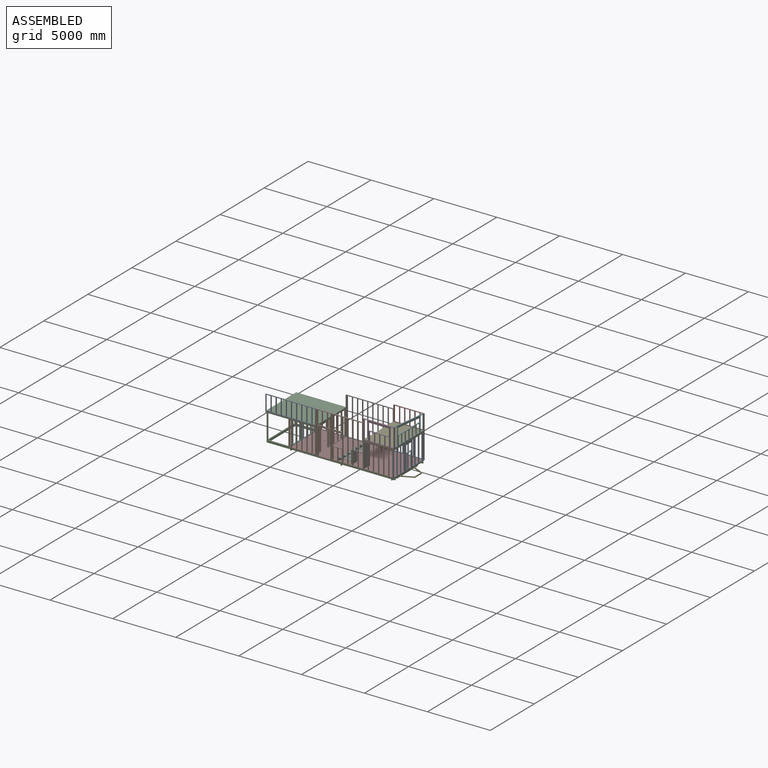
[diagram: assembled view]
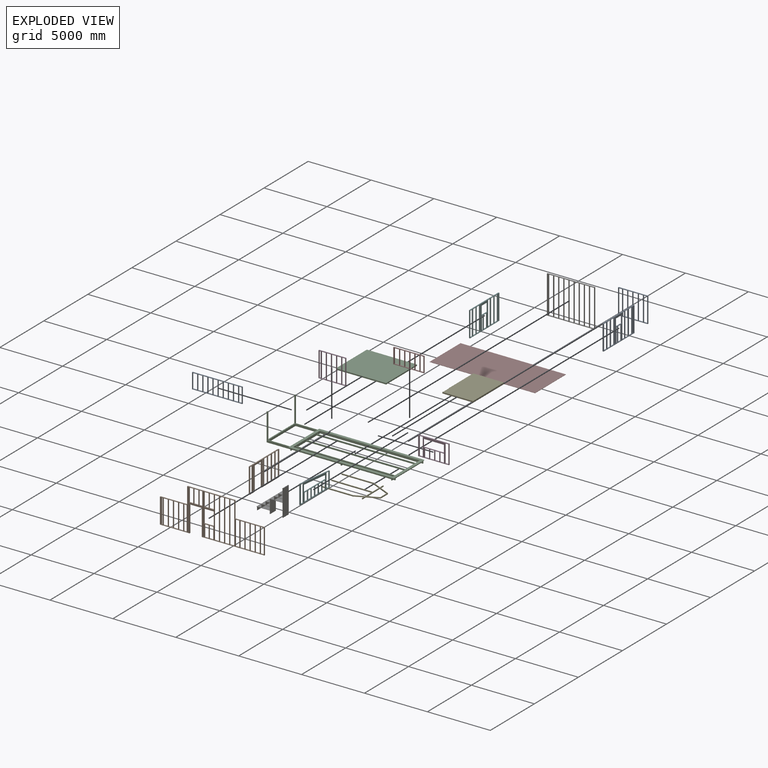
[diagram: exploded view]
GUIDED TOUR — MATED ASSEMBLY (Onshape document c8c15f16987128ea0dcd9a39, AutoMate assembly c8c15f16987128ea0dcd9a39_2c017c27b268a495aacf960a_6606924da4c3053219696071_default)

This assembly has 17 components, labeled P0..P16 below (a component is one placed occurrence of a part; the same part can appear more than once), held together by 16 mates. A mate is a constraint between two components; its type names the relative motion it leaves free:
  FASTENED — locks the two components together rigidly (no relative motion).
Axis/direction vectors are unit vectors and 'through' points are millimeter coordinates, both in the assembly's world frame.

MATES
  1. FASTENED "Fastened 14": P16 <-> P2, direction (1.000, 0.000, 0.000) through (-7276.64, 3408.06, 1241.33) mm
  2. FASTENED "Fastened 12": P4 <-> P14, direction (0.000, 1.000, 0.000) through (-1472.74, 3827.16, 1241.33) mm
  3. FASTENED "Fastened 3": P8 <-> P7, direction (0.000, -1.000, 0.000) through (940.26, 5160.66, -866.87) mm
  4. FASTENED "Fastened 7": P4 <-> P11, direction (1.000, 0.000, 0.000) through (-278.94, 3408.06, 1241.33) mm
  5. FASTENED "Fastened 8": P9 <-> P1, direction (1.000, 0.000, 0.000) through (-5282.74, 3496.96, 1139.73) mm
  6. FASTENED "Fastened 1": P12 <-> P10, direction (0.000, -1.000, 0.000) through (787.86, 5160.66, -1076.42) mm
  7. FASTENED "Fastened 13": P0 <-> P8, direction (0.000, 0.000, -1.000) through (851.36, 6913.26, 136.43) mm
  8. FASTENED "Fastened 11": P4 <-> P13, direction (0.000, -1.000, 0.000) through (940.26, 5160.66, 1241.33) mm
  9. FASTENED "Fastened 15": P5 <-> P3, direction (0.000, 0.000, -1.000) through (-7441.74, 6824.36, 136.43) mm
  10. FASTENED "Fastened 16": P6 <-> P0, direction (0.000, 1.000, 0.000) through (-1498.14, 6868.81, -866.87) mm
  11. FASTENED "Fastened 2": P7 <-> P10, direction (0.000, -1.000, 0.000) through (711.66, 5160.66, -885.92) mm
  12. FASTENED "Fastened 10": P4 <-> P15, direction (1.000, 0.000, 0.000) through (-278.94, 6913.26, 1241.33) mm
  13. FASTENED "Fastened 9": P2 <-> P9, direction (0.000, 1.000, 0.000) through (-5282.74, 5160.66, 1139.73) mm
  14. FASTENED "Fastened 5": P5 <-> P7, direction (0.000, 1.000, 0.000) through (-7441.74, 5160.66, -866.87) mm
  15. FASTENED "Fastened 4": P1 <-> P8, direction (0.000, 0.000, 1.000) through (851.36, 3408.06, 136.43) mm
  16. FASTENED "Fastened 6": P4 <-> P8, direction (0.000, -1.000, 0.000) through (940.26, 5160.66, 1139.73) mm

ASSEMBLY ORDER
  1. P10 — the base component [order verified]
  2. P7 [order verified]
  3. P3 [order verified]
  4. P9 [order verified]
  5. P14 [order verified]
  6. P5 [order verified]
  7. P4 [order verified]
  8. P2 [order verified]
  9. P1 [order verified]
  10. P12 [order verified]
  11. P16 [order verified]
  12. P6 [order verified]
  13. P13 [order verified]
  14. P11 [order verified]
  15. P15 [order verified]
  16. P8 [order verified]
  17. P0 [order verified]
Order-tag legend:
  [order verified] — this step's position reverses a verified removal order: the component was checked to insert without passing through the ones already placed.

Of the 17 components, 13 carry the full construction recipe — the FeatureScript program that regenerates the part's solid from scratch; the rest are supplied as boundary geometry only.
Because this assembly has more than 12 components, the tour below covers the 12 most significant ones individually (every recipe-attached component first, then the largest by part volume), in assembly order; the remaining 5 are summarized together in a grouped section at the end.
Each toured component is shown spotlighted twice — in the assembled view, then in the exploded view, where a leader line traces a displaced component back to its assembled socket (saturated green if recipe-attached, orange if geometry-only; every other component desaturated gray) — followed by its recipe or geometry summary and the mates that hold it.
NOTE — this tour is split across 3 documents so each fits a 32k-token context. This is document 1: the component sections continue in the remaining 2 documents, each repeating the header above.
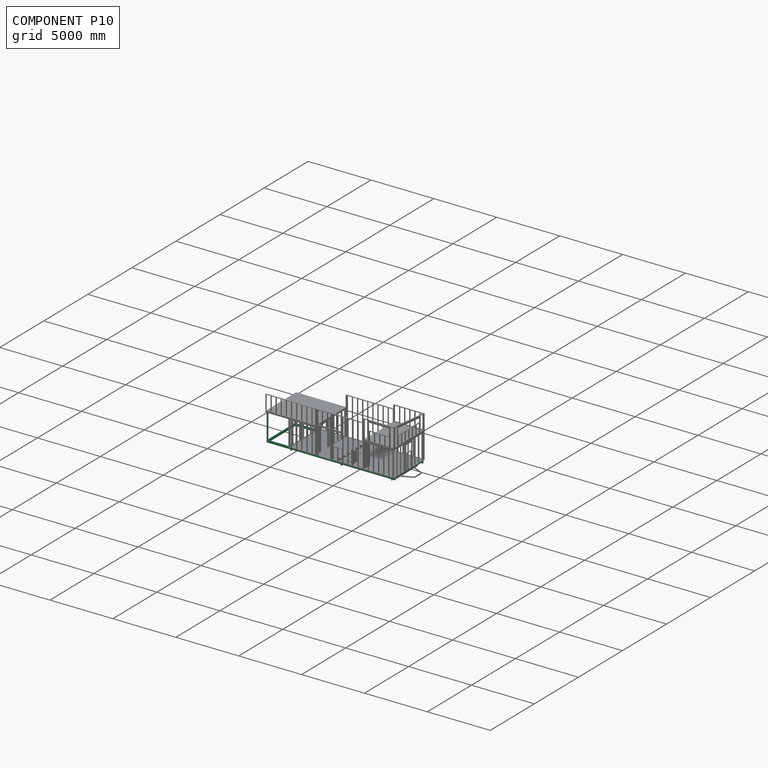
[diagram: component P10 — assembled]
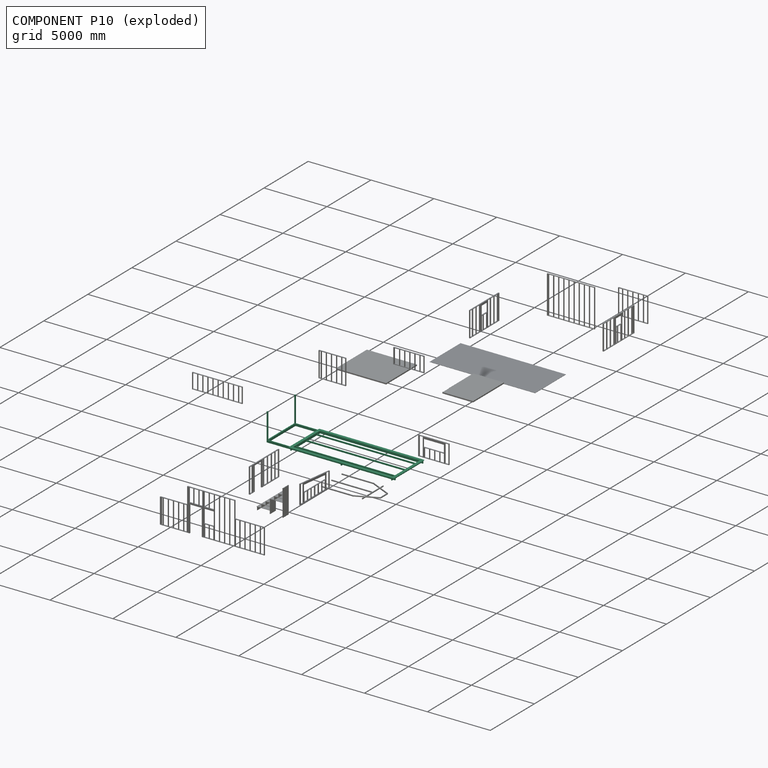
[diagram: component P10 — exploded]
COMPONENT P10 — recipe-attached (CADFS 00191159, mesh-verified: the recipe's output STEP matches this component's geometry to below the mesh-comparison resolution (tessellation chordal tolerance ~16.5 mm)).
Held by: FASTENED mate "Fastened 1" to P12; FASTENED mate "Fastened 2" to P7.
Construction recipe (FeatureScript — the CAD program that rebuilds this solid; sketch coordinates are in the units given by the * unit suffixes, e.g. mm):

FeatureScript 2066;
import(path : "onshape/std/geometry.fs", version : "2066.0");
import(path : "onshape/std/common.fs", version : "2066.0");
const mm = millimeter;
const VERTEX = EntityType.VERTEX;
const EDGE = EntityType.EDGE;
const FACE = EntityType.FACE;
const BODY = EntityType.BODY;
function v(x, y){return vector(x, y);}
function OD(order){return orderDisambiguation(order);}
function OSD(set){return originalSetDisambiguation(set);}
function TD(topology){return topologyDisambiguation(topology);}
function TDD(query){return trueDependencyDisambiguation(query);}
function sQuery(a, b, c) {return sketchEntityQuery(a, b, c);}

annotation { "Feature Type Name" : "Feature", "Feature Type Description" : "" }
export const myFeature = defineFeature(function(context is Context, id is Id, definition is map)
    precondition{}
    {
        {
            var Q0;
            Q0=qCreatedBy(makeId("Top.planeOp"),FACE);
            var sketch = newSketch(context, id + "F0", { "sketchPlane" : qUnion([Q0])});
            skLineSegment(sketch, "E0.bottom", {"start": v(3962.4, -1524) * mm, "end": v(-3962.4, -1524) * mm});
            skLineSegment(sketch, "E0.top", {"start": v(3962.4, 1524) * mm, "end": v(-3962.4, 1524) * mm});
            skLineSegment(sketch, "E0.left", {"start": v(3962.4, -1524) * mm, "end": v(3962.4, 1524) * mm});
            skLineSegment(sketch, "E0.right", {"start": v(-3962.4, -1524) * mm, "end": v(-3962.4, 1524) * mm});
            skPoint(sketch, "E0.middle", {"position": v(0, 0) * mm});
            skLineSegment(sketch, "E1.bottom", {"start": v(4038.6, -1600.2) * mm, "end": v(-4038.6, -1600.2) * mm});
            skLineSegment(sketch, "E1.top", {"start": v(4038.6, 1600.2) * mm, "end": v(-4038.6, 1600.2) * mm});
            skLineSegment(sketch, "E1.left", {"start": v(4038.6, -1600.2) * mm, "end": v(4038.6, 1600.2) * mm});
            skLineSegment(sketch, "E1.right", {"start": v(-4038.6, -1600.2) * mm, "end": v(-4038.6, 1600.2) * mm});
            skSolve(sketch);
        }
        {
            var Q0;
            Q0 = qSketchRegion(id + "F0", true);
            extrude(context, id + "F1", {"entities" : qUnion([Q0]), "depth" : 88.9 * mm});
        }
        {
            var Q0;
            Q0=makeQuery(id+"F1.opExtrude","CAP_FACE",FACE,{"disambiguationData":[OSD([sQuery(id+"F0.wireOp",EDGE,"E0.bottom"),sQuery(id+"F0.wireOp",EDGE,"E0.top"),sQuery(id+"F0.wireOp",EDGE,"E0.left"),sQuery(id+"F0.wireOp",EDGE,"E0.right"),sQuery(id+"F0.wireOp",EDGE,"E1.bottom"),sQuery(id+"F0.wireOp",EDGE,"E1.top"),sQuery(id+"F0.wireOp",EDGE,"E1.left"),sQuery(id+"F0.wireOp",EDGE,"E1.right")])],"isStart":false});
            var sketch = newSketch(context, id + "F2", { "sketchPlane" : qUnion([Q0])});
            skLineSegment(sketch, "E2.bottom", {"start": v(4038.6, -1600.2) * mm, "end": v(-4038.6, -1600.2) * mm});
            skLineSegment(sketch, "E2.top", {"start": v(4038.6, 1600.2) * mm, "end": v(-4038.6, 1600.2) * mm});
            skLineSegment(sketch, "E2.left", {"start": v(4038.6, -1600.2) * mm, "end": v(4038.6, 1600.2) * mm});
            skLineSegment(sketch, "E2.right", {"start": v(-4038.6, -1600.2) * mm, "end": v(-4038.6, 1600.2) * mm});
            skPoint(sketch, "E2.middle", {"position": v(0, 0) * mm});
            skLineSegment(sketch, "E3.bottom", {"start": v(4191, -1752.6) * mm, "end": v(-4191, -1752.6) * mm});
            skLineSegment(sketch, "E3.top", {"start": v(4191, 1752.6) * mm, "end": v(-4191, 1752.6) * mm});
            skLineSegment(sketch, "E3.left", {"start": v(4191, -1752.6) * mm, "end": v(4191, 1752.6) * mm});
            skLineSegment(sketch, "E3.right", {"start": v(-4191, -1752.6) * mm, "end": v(-4191, 1752.6) * mm});
            skSolve(sketch);
        }
        {
            var Q0;
            Q0 = qSketchRegion(id + "F2", true);
            extrude(context, id + "F3", {"entities" : qUnion([Q0]), "operationType" : NewBodyOperationType.ADD, "oppositeDirection" : true, "depth" : 12.7 * mm});
        }
        {
            var Q0;
            Q0=makeQuery(id+"F1.opExtrude","CAP_FACE",FACE,{"disambiguationData":[OSD([sQuery(id+"F0.wireOp",EDGE,"E0.bottom"),sQuery(id+"F0.wireOp",EDGE,"E0.top"),sQuery(id+"F0.wireOp",EDGE,"E0.left"),sQuery(id+"F0.wireOp",EDGE,"E0.right"),sQuery(id+"F0.wireOp",EDGE,"E1.bottom"),sQuery(id+"F0.wireOp",EDGE,"E1.top"),sQuery(id+"F0.wireOp",EDGE,"E1.left"),sQuery(id+"F0.wireOp",EDGE,"E1.right")])],"isStart":true});
            var sketch = newSketch(context, id + "F4", { "sketchPlane" : qUnion([Q0])});
            skLineSegment(sketch, "E4.bottom", {"start": v(-4038.6, -1193.8) * mm, "end": v(4038.6, -1193.8) * mm});
            skLineSegment(sketch, "E4.top", {"start": v(-4038.6, -1130.3) * mm, "end": v(4038.6, -1130.3) * mm});
            skLineSegment(sketch, "E4.left", {"start": v(-4038.6, -1193.8) * mm, "end": v(-4038.6, -1130.3) * mm});
            skLineSegment(sketch, "E4.right", {"start": v(4038.6, -1193.8) * mm, "end": v(4038.6, -1130.3) * mm});
            skLineSegment(sketch, "E5.bottom", {"start": v(-4038.6, 31.75) * mm, "end": v(4038.6, 31.75) * mm});
            skLineSegment(sketch, "E5.top", {"start": v(-4038.6, -31.75) * mm, "end": v(4038.6, -31.75) * mm});
            skLineSegment(sketch, "E5.left", {"start": v(-4038.6, 31.75) * mm, "end": v(-4038.6, -31.75) * mm});
            skLineSegment(sketch, "E5.right", {"start": v(4038.6, 31.75) * mm, "end": v(4038.6, -31.75) * mm});
            skPoint(sketch, "E5.middle", {"position": v(0, 0) * mm});
            skLineSegment(sketch, "E6.bottom", {"start": v(4038.6, 1130.3) * mm, "end": v(-4038.6, 1130.3) * mm});
            skLineSegment(sketch, "E6.top", {"start": v(4038.6, 1193.8) * mm, "end": v(-4038.6, 1193.8) * mm});
            skLineSegment(sketch, "E6.left", {"start": v(4038.6, 1130.3) * mm, "end": v(4038.6, 1193.8) * mm});
            skLineSegment(sketch, "E6.right", {"start": v(-4038.6, 1130.3) * mm, "end": v(-4038.6, 1193.8) * mm});
            skLineSegment(sketch, "E7.bottom", {"start": v(-4038.6, -1600.2) * mm, "end": v(-3962.4, -1600.2) * mm});
            skLineSegment(sketch, "E7.top", {"start": v(-4038.6, 1600.2) * mm, "end": v(-3962.4, 1600.2) * mm});
            skLineSegment(sketch, "E7.left", {"start": v(-4038.6, -1600.2) * mm, "end": v(-4038.6, 1600.2) * mm});
            skLineSegment(sketch, "E7.right", {"start": v(-3962.4, -1600.2) * mm, "end": v(-3962.4, 1600.2) * mm});
            skLineSegment(sketch, "E8.bottom", {"start": v(4038.6, -1600.2) * mm, "end": v(3962.4, -1600.2) * mm});
            skLineSegment(sketch, "E8.top", {"start": v(4038.6, 1600.2) * mm, "end": v(3962.4, 1600.2) * mm});
            skLineSegment(sketch, "E8.left", {"start": v(4038.6, -1600.2) * mm, "end": v(4038.6, 1600.2) * mm});
            skLineSegment(sketch, "E8.right", {"start": v(3962.4, -1600.2) * mm, "end": v(3962.4, 1600.2) * mm});
            skSolve(sketch);
        }
        {
            var Q0;
            Q0 = qSketchRegion(id + "F4", true);
            var Q1;
            {var subQ0=sQuery(id+"F4.wireOp",EDGE,"E7.right");var subQ1=sQuery(id+"F4.wireOp",EDGE,"E5.bottom");var subQ2=makeQuery(id+"F4.imprint","INTERSECT",VERTEX,{"derivedFrom":[subQ1,subQ0]});Q1=makeQuery(id+"F4.imprint","IMPRINT",FACE,{"disambiguationData":[TD([[makeQuery(id+"F4.imprint","IMPRINT",EDGE,{"disambiguationData":[TD([[subQ2,-1.0]])],"derivedFrom":subQ1}),-1.0]])]});}
            extrude(context, id + "F5", {"entities" : qUnion([Q0, Q1]), "operationType" : NewBodyOperationType.ADD, "depth" : 101.6 * mm});
        }
        {
            var Q0;
            {var subQ1=sQuery(id+"F0.wireOp",EDGE,"E0.top");var subQ6=sQuery(id+"F0.wireOp",EDGE,"E1.top");var subQ11=sQuery(id+"F0.wireOp",EDGE,"E0.bottom");var subQ14=sQuery(id+"F0.wireOp",EDGE,"E1.bottom");var subQ17=sQuery(id+"F0.wireOp",EDGE,"E0.right");var subQ22=sQuery(id+"F0.wireOp",EDGE,"E0.left");Q0=makeQuery(id+"F5.boolean.opBoolean","SPLIT",FACE,{"disambiguationData":[TD([makeQuery(id+"F1.opExtrude","SWEPT_FACE",FACE,{"disambiguationData":[OSD([subQ1])]})])],"derivedFrom":makeQuery(id+"F1.opExtrude","CAP_FACE",FACE,{"disambiguationData":[OSD([subQ11,subQ1,subQ22,subQ17,subQ14,subQ6,sQuery(id+"F0.wireOp",EDGE,"E1.left"),sQuery(id+"F0.wireOp",EDGE,"E1.right")])],"isStart":true})});}
            var sketch = newSketch(context, id + "F6", { "sketchPlane" : qUnion([Q0])});
            skLineSegment(sketch, "E9.bottom", {"start": v(-3962.4, -1600.2) * mm, "end": v(3962.4, -1600.2) * mm});
            skLineSegment(sketch, "E9.top", {"start": v(-3962.4, -1524) * mm, "end": v(3962.4, -1524) * mm});
            skLineSegment(sketch, "E9.left", {"start": v(-3962.4, -1600.2) * mm, "end": v(-3962.4, -1524) * mm});
            skLineSegment(sketch, "E9.right", {"start": v(3962.4, -1600.2) * mm, "end": v(3962.4, -1524) * mm});
            skSolve(sketch);
        }
        {
            var Q0;
            Q0 = qSketchRegion(id + "F6", true);
            extrude(context, id + "F7", {"entities" : qUnion([Q0]), "operationType" : NewBodyOperationType.ADD, "depth" : 101.6 * mm});
        }
        {
            var Q0;
            {var subQ1=sQuery(id+"F0.wireOp",EDGE,"E0.bottom");var subQ8=sQuery(id+"F0.wireOp",EDGE,"E1.bottom");var subQ11=sQuery(id+"F0.wireOp",EDGE,"E0.right");var subQ13=sQuery(id+"F0.wireOp",EDGE,"E0.top");var subQ17=sQuery(id+"F0.wireOp",EDGE,"E1.top");var subQ19=sQuery(id+"F0.wireOp",EDGE,"E0.left");Q0=makeQuery(id+"F5.boolean.opBoolean","SPLIT",FACE,{"disambiguationData":[TD([makeQuery(id+"F1.opExtrude","SWEPT_FACE",FACE,{"disambiguationData":[OSD([subQ1])]})])],"derivedFrom":makeQuery(id+"F1.opExtrude","CAP_FACE",FACE,{"disambiguationData":[OSD([subQ1,subQ13,subQ19,subQ11,subQ8,subQ17,sQuery(id+"F0.wireOp",EDGE,"E1.left"),sQuery(id+"F0.wireOp",EDGE,"E1.right")])],"isStart":true})});}
            var sketch = newSketch(context, id + "F8", { "sketchPlane" : qUnion([Q0])});
            skLineSegment(sketch, "E10.bottom", {"start": v(3962.4, 1600.2) * mm, "end": v(-3962.4, 1600.2) * mm});
            skLineSegment(sketch, "E10.top", {"start": v(3962.4, 1524) * mm, "end": v(-3962.4, 1524) * mm});
            skLineSegment(sketch, "E10.left", {"start": v(3962.4, 1600.2) * mm, "end": v(3962.4, 1524) * mm});
            skLineSegment(sketch, "E10.right", {"start": v(-3962.4, 1600.2) * mm, "end": v(-3962.4, 1524) * mm});
            skSolve(sketch);
        }
        {
            var Q0;
            Q0 = qSketchRegion(id + "F8", true);
            extrude(context, id + "F9", {"entities" : qUnion([Q0]), "operationType" : NewBodyOperationType.ADD, "depth" : 101.6 * mm});
        }
        {
            var Q0;
            Q0=makeQuery(id+"F3.opExtrude","CAP_FACE",FACE,{"disambiguationData":[OSD([sQuery(id+"F2.wireOp",EDGE,"E2.bottom"),sQuery(id+"F2.wireOp",EDGE,"E2.top"),sQuery(id+"F2.wireOp",EDGE,"E2.left"),sQuery(id+"F2.wireOp",EDGE,"E2.right"),sQuery(id+"F2.wireOp",EDGE,"E3.bottom"),sQuery(id+"F2.wireOp",EDGE,"E3.top"),sQuery(id+"F2.wireOp",EDGE,"E3.left"),sQuery(id+"F2.wireOp",EDGE,"E3.right")])],"isStart":false});
            var sketch = newSketch(context, id + "F10", { "sketchPlane" : qUnion([Q0])});
            skLineSegment(sketch, "E11.bottom", {"start": v(-4038.6, 1600.2) * mm, "end": v(-3975.1, 1600.2) * mm});
            skLineSegment(sketch, "E11.top", {"start": v(-4038.6, 1752.6) * mm, "end": v(-3975.1, 1752.6) * mm});
            skLineSegment(sketch, "E11.left", {"start": v(-4038.6, 1600.2) * mm, "end": v(-4038.6, 1752.6) * mm});
            skLineSegment(sketch, "E11.right", {"start": v(-3975.1, 1600.2) * mm, "end": v(-3975.1, 1752.6) * mm});
            skLineSegment(sketch, "E12.bottom", {"start": v(-34.69, 1600.2) * mm, "end": v(28.81, 1600.2) * mm});
            skLineSegment(sketch, "E12.top", {"start": v(-34.69, 1752.6) * mm, "end": v(28.81, 1752.6) * mm});
            skLineSegment(sketch, "E12.left", {"start": v(-34.69, 1600.2) * mm, "end": v(-34.69, 1752.6) * mm});
            skLineSegment(sketch, "E12.right", {"start": v(28.81, 1600.2) * mm, "end": v(28.81, 1752.6) * mm});
            skLineSegment(sketch, "E13.bottom", {"start": v(4038.6, 1600.2) * mm, "end": v(3975.1, 1600.2) * mm});
            skLineSegment(sketch, "E13.top", {"start": v(4038.6, 1752.6) * mm, "end": v(3975.1, 1752.6) * mm});
            skLineSegment(sketch, "E13.left", {"start": v(4038.6, 1600.2) * mm, "end": v(4038.6, 1752.6) * mm});
            skLineSegment(sketch, "E13.right", {"start": v(3975.1, 1600.2) * mm, "end": v(3975.1, 1752.6) * mm});
            skLineSegment(sketch, "E14.bottom", {"start": v(4038.6, 1600.2) * mm, "end": v(4191, 1600.2) * mm});
            skLineSegment(sketch, "E14.top", {"start": v(4038.6, 1536.7) * mm, "end": v(4191, 1536.7) * mm});
            skLineSegment(sketch, "E14.left", {"start": v(4038.6, 1600.2) * mm, "end": v(4038.6, 1536.7) * mm});
            skLineSegment(sketch, "E14.right", {"start": v(4191, 1600.2) * mm, "end": v(4191, 1536.7) * mm});
            skLineSegment(sketch, "E15.bottom", {"start": v(4038.6, -1600.2) * mm, "end": v(4191, -1600.2) * mm});
            skLineSegment(sketch, "E15.top", {"start": v(4038.6, -1536.7) * mm, "end": v(4191, -1536.7) * mm});
            skLineSegment(sketch, "E15.left", {"start": v(4038.6, -1600.2) * mm, "end": v(4038.6, -1536.7) * mm});
            skLineSegment(sketch, "E15.right", {"start": v(4191, -1600.2) * mm, "end": v(4191, -1536.7) * mm});
            skLineSegment(sketch, "E16.bottom", {"start": v(4038.6, -1600.2) * mm, "end": v(3975.1, -1600.2) * mm});
            skLineSegment(sketch, "E16.top", {"start": v(4038.6, -1752.6) * mm, "end": v(3975.1, -1752.6) * mm});
            skLineSegment(sketch, "E16.left", {"start": v(4038.6, -1600.2) * mm, "end": v(4038.6, -1752.6) * mm});
            skLineSegment(sketch, "E16.right", {"start": v(3975.1, -1600.2) * mm, "end": v(3975.1, -1752.6) * mm});
            skLineSegment(sketch, "E17.bottom", {"start": v(-4038.6, -1600.2) * mm, "end": v(-3975.1, -1600.2) * mm});
            skLineSegment(sketch, "E17.top", {"start": v(-4038.6, -1752.6) * mm, "end": v(-3975.1, -1752.6) * mm});
            skLineSegment(sketch, "E17.left", {"start": v(-4038.6, -1600.2) * mm, "end": v(-4038.6, -1752.6) * mm});
            skLineSegment(sketch, "E17.right", {"start": v(-3975.1, -1600.2) * mm, "end": v(-3975.1, -1752.6) * mm});
            skLineSegment(sketch, "E18.bottom", {"start": v(-4038.6, -1600.2) * mm, "end": v(-4191, -1600.2) * mm});
            skLineSegment(sketch, "E18.top", {"start": v(-4038.6, -1536.7) * mm, "end": v(-4191, -1536.7) * mm});
            skLineSegment(sketch, "E18.left", {"start": v(-4038.6, -1600.2) * mm, "end": v(-4038.6, -1536.7) * mm});
            skLineSegment(sketch, "E18.right", {"start": v(-4191, -1600.2) * mm, "end": v(-4191, -1536.7) * mm});
            skLineSegment(sketch, "E19.bottom", {"start": v(-41.58, -1600.2) * mm, "end": v(21.92, -1600.2) * mm});
            skLineSegment(sketch, "E19.top", {"start": v(-41.58, -1752.6) * mm, "end": v(21.92, -1752.6) * mm});
            skLineSegment(sketch, "E19.left", {"start": v(-41.58, -1600.2) * mm, "end": v(-41.58, -1752.6) * mm});
            skLineSegment(sketch, "E19.right", {"start": v(21.92, -1600.2) * mm, "end": v(21.92, -1752.6) * mm});
            skLineSegment(sketch, "E20.bottom", {"start": v(-4038.6, 1600.2) * mm, "end": v(-4191, 1600.2) * mm});
            skLineSegment(sketch, "E20.top", {"start": v(-4038.6, 1536.7) * mm, "end": v(-4191, 1536.7) * mm});
            skLineSegment(sketch, "E20.left", {"start": v(-4038.6, 1600.2) * mm, "end": v(-4038.6, 1536.7) * mm});
            skLineSegment(sketch, "E20.right", {"start": v(-4191, 1600.2) * mm, "end": v(-4191, 1536.7) * mm});
            skSolve(sketch);
        }
        {
            var Q0;
            Q0 = qSketchRegion(id + "F10", true);
            extrude(context, id + "F11", {"entities" : qUnion([Q0]), "operationType" : NewBodyOperationType.ADD, "depth" : 177.8 * mm});
        }
        {
            var Q0;
            Q0=makeQuery(id+"F11.boolean.opBoolean","MERGE",FACE,{"derivedFrom":[makeQuery(id+"F3.opExtrude","SWEPT_FACE",FACE,{"disambiguationData":[OSD([sQuery(id+"F2.wireOp",EDGE,"E3.right")])]}),makeQuery(id+"F11.opExtrude","SWEPT_FACE",FACE,{"disambiguationData":[OSD([sQuery(id+"F10.wireOp",EDGE,"E18.right")])]}),makeQuery(id+"F11.opExtrude","SWEPT_FACE",FACE,{"disambiguationData":[OSD([sQuery(id+"F10.wireOp",EDGE,"E20.right")])]})]});
            var sketch = newSketch(context, id + "F12", { "sketchPlane" : qUnion([Q0])});
            skLineSegment(sketch, "E21", {"start": v(1536.7, 76.2) * mm, "end": v(1600.2, 76.2) * mm});
            skLineSegment(sketch, "E22", {"start": v(-1600.2, 76.2) * mm, "end": v(-1536.7, 76.2) * mm});
            skSolve(sketch);
        }
        {
            var Q0;
            Q0=makeQuery(id+"F12.imprint","IMPRINT",FACE,{"disambiguationData":[TD([[makeQuery(id+"F12.imprint","IMPRINT",EDGE,{"derivedFrom":sQuery(id+"F12.wireOp",EDGE,"E22")}),-1.0]])]});
            var Q1;
            Q1=makeQuery(id+"F12.imprint","IMPRINT",FACE,{"disambiguationData":[TD([[makeQuery(id+"F12.imprint","IMPRINT",EDGE,{"derivedFrom":sQuery(id+"F12.wireOp",EDGE,"E21")}),-1.0]])]});
            extrude(context, id + "F13", {"entities" : qUnion([Q0, Q1]), "operationType" : NewBodyOperationType.ADD, "depth" : 1828.8 * mm, "offsetDistance" : 25.4 * mm});
        }
        {
            var Q0;
            {var subQ0=sQuery(id+"F10.wireOp",EDGE,"E18.top");Q0=makeQuery(id+"F13.boolean.opBoolean","MERGE",FACE,{"derivedFrom":[makeQuery(id+"F11.opExtrude","SWEPT_FACE",FACE,{"disambiguationData":[OSD([subQ0])]}),makeQuery(id+"F13.opExtrude","SWEPT_FACE",FACE,{"disambiguationData":[OSD([sQuery(id+"F2.wireOp",EDGE,"E3.right"),subQ0,sQuery(id+"F10.wireOp",EDGE,"E18.right")])]})]});}
            var sketch = newSketch(context, id + "F14", { "sketchPlane" : qUnion([Q0])});
            skLineSegment(sketch, "E23", {"start": v(-5930.9, 76.2) * mm, "end": v(-5930.9, -101.6) * mm});
            skSolve(sketch);
        }
        {
            var Q0;
            Q0 = qSketchRegion(id + "F14", true);
            var Q1;
            {var subQ0=sQuery(id+"F14.wireOp",EDGE,"E23");Q1=makeQuery(id+"F14.imprint","IMPRINT",FACE,{"disambiguationData":[TD([[makeQuery(id+"F14.imprint","IMPRINT",EDGE,{"derivedFrom":subQ0}),-1.0]])]});}
            extrude(context, id + "F15", {"entities" : qUnion([Q0, Q1]), "operationType" : NewBodyOperationType.ADD, "depth" : 3103.88 * mm, "offsetDistance" : 25.4 * mm});
        }
        {
            var Q0;
            {var subQ0=sQuery(id+"F12.wireOp",EDGE,"E22");Q0=makeQuery(id+"F15.boolean.opBoolean","MERGE",FACE,{"derivedFrom":[makeQuery(id+"F13.opExtrude","SWEPT_FACE",FACE,{"disambiguationData":[OSD([sQuery(id+"F12.wireOp",EDGE,"E21")])]}),makeQuery(id+"F13.opExtrude","SWEPT_FACE",FACE,{"disambiguationData":[OSD([subQ0])]}),makeQuery(id+"F15.opExtrude","SWEPT_FACE",FACE,{"disambiguationData":[OSD([sQuery(id+"F2.wireOp",EDGE,"E3.right"),sQuery(id+"F10.wireOp",EDGE,"E18.top"),sQuery(id+"F10.wireOp",EDGE,"E18.right"),subQ0])]})]});}
            var sketch = newSketch(context, id + "F16", { "sketchPlane" : qUnion([Q0])});
            skLineSegment(sketch, "E24.bottom", {"start": v(-5930.9, -1536.7) * mm, "end": v(-6019.8, -1536.7) * mm});
            skLineSegment(sketch, "E24.top", {"start": v(-5930.9, -1600.2) * mm, "end": v(-6019.8, -1600.2) * mm});
            skLineSegment(sketch, "E24.left", {"start": v(-5930.9, -1536.7) * mm, "end": v(-5930.9, -1600.2) * mm});
            skLineSegment(sketch, "E24.right", {"start": v(-6019.8, -1536.7) * mm, "end": v(-6019.8, -1600.2) * mm});
            skLineSegment(sketch, "E25.bottom", {"start": v(-6019.8, 1600.2) * mm, "end": v(-5930.9, 1600.2) * mm});
            skLineSegment(sketch, "E25.top", {"start": v(-6019.8, 1536.7) * mm, "end": v(-5930.9, 1536.7) * mm});
            skLineSegment(sketch, "E25.left", {"start": v(-6019.8, 1600.2) * mm, "end": v(-6019.8, 1536.7) * mm});
            skLineSegment(sketch, "E25.right", {"start": v(-5930.9, 1600.2) * mm, "end": v(-5930.9, 1536.7) * mm});
            skSolve(sketch);
        }
        {
            var Q0;
            Q0 = qSketchRegion(id + "F16", true);
            extrude(context, id + "F17", {"entities" : qUnion([Q0]), "operationType" : NewBodyOperationType.ADD, "depth" : 2044.04 * mm, "offsetDistance" : 25.4 * mm});
        }
    });
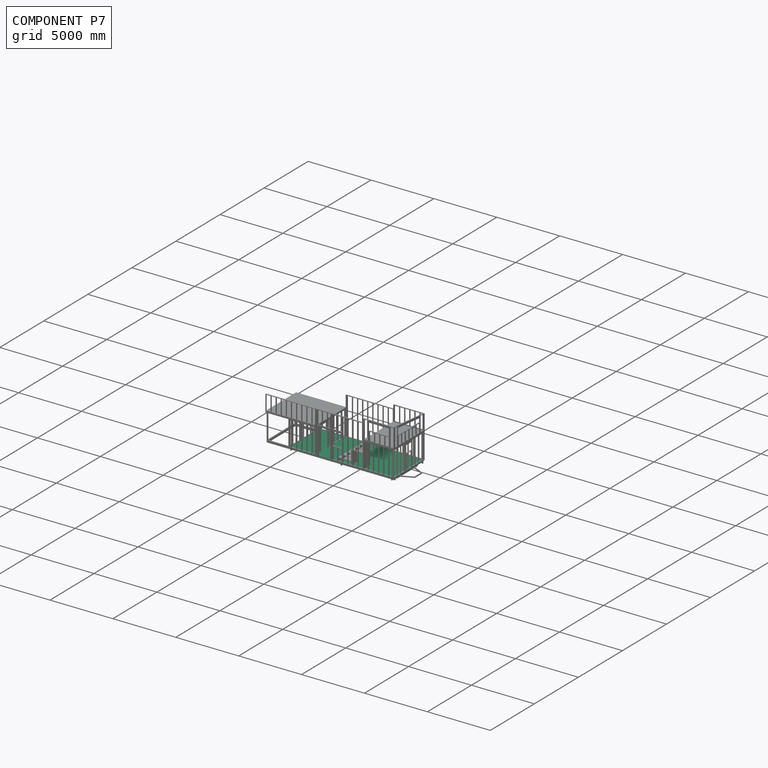
[diagram: component P7 — assembled]
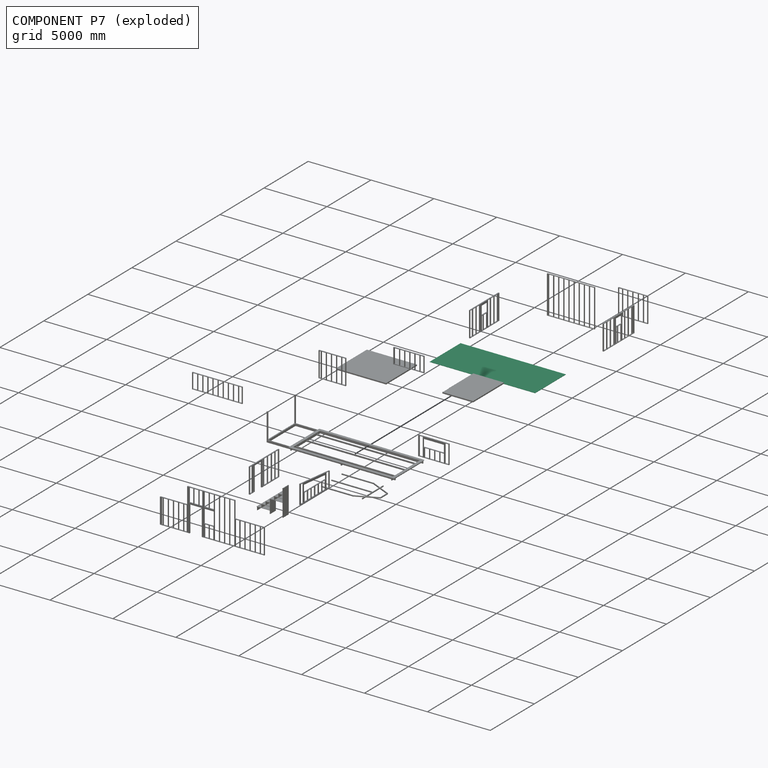
[diagram: component P7 — exploded]
COMPONENT P7 — recipe-attached (CADFS 00191162, mesh-verified: the recipe's output STEP matches this component's geometry to below the mesh-comparison resolution (tessellation chordal tolerance ~13.6 mm)).
Held by: FASTENED mate "Fastened 3" to P8; FASTENED mate "Fastened 2" to P10; FASTENED mate "Fastened 5" to P5.
Construction recipe (FeatureScript — the CAD program that rebuilds this solid; sketch coordinates are in the units given by the * unit suffixes, e.g. mm):

FeatureScript 2066;
import(path : "onshape/std/geometry.fs", version : "2066.0");
import(path : "onshape/std/common.fs", version : "2066.0");
const mm = millimeter;
const VERTEX = EntityType.VERTEX;
const EDGE = EntityType.EDGE;
const FACE = EntityType.FACE;
const BODY = EntityType.BODY;
function v(x, y){return vector(x, y);}
function OD(order){return orderDisambiguation(order);}
function OSD(set){return originalSetDisambiguation(set);}
function TD(topology){return topologyDisambiguation(topology);}
function TDD(query){return trueDependencyDisambiguation(query);}
function sQuery(a, b, c) {return sketchEntityQuery(a, b, c);}

annotation { "Feature Type Name" : "Feature", "Feature Type Description" : "" }
export const myFeature = defineFeature(function(context is Context, id is Id, definition is map)
    precondition{}
    {
        {
            var Q0;
            Q0=qCreatedBy(makeId("Top.planeOp"),FACE);
            var sketch = newSketch(context, id + "F0", { "sketchPlane" : qUnion([Q0])});
            skLineSegment(sketch, "E0.bottom", {"start": v(3962.4, -44.45) * mm, "end": v(-3962.4, -44.45) * mm});
            skLineSegment(sketch, "E0.top", {"start": v(3962.4, 44.45) * mm, "end": v(-3962.4, 44.45) * mm});
            skLineSegment(sketch, "E0.left", {"start": v(3962.4, -44.45) * mm, "end": v(3962.4, 44.45) * mm});
            skLineSegment(sketch, "E0.right", {"start": v(-3962.4, -44.45) * mm, "end": v(-3962.4, 44.45) * mm});
            skPoint(sketch, "E0.middle", {"position": v(0, 0) * mm});
            skSolve(sketch);
        }
        {
            var Q0;
            Q0 = qSketchRegion(id + "F0", true);
            extrude(context, id + "F1", {"entities" : qUnion([Q0]), "depth" : 38.1 * mm});
        }
        {
            var Q0;
            Q0=makeQuery(id+"F1.opExtrude","CAP_FACE",FACE,{"disambiguationData":[OSD([sQuery(id+"F0.wireOp",EDGE,"E0.bottom"),sQuery(id+"F0.wireOp",EDGE,"E0.top"),sQuery(id+"F0.wireOp",EDGE,"E0.left"),sQuery(id+"F0.wireOp",EDGE,"E0.right")])],"isStart":false});
            var sketch = newSketch(context, id + "F2", { "sketchPlane" : qUnion([Q0])});
            skLineSegment(sketch, "E1.bottom", {"start": v(3962.4, 44.45) * mm, "end": v(3924.3, 44.45) * mm});
            skLineSegment(sketch, "E1.top", {"start": v(3962.4, -44.45) * mm, "end": v(3924.3, -44.45) * mm});
            skLineSegment(sketch, "E1.left", {"start": v(3962.4, 44.45) * mm, "end": v(3962.4, -44.45) * mm});
            skLineSegment(sketch, "E1.right", {"start": v(3924.3, 44.45) * mm, "end": v(3924.3, -44.45) * mm});
            skLineSegment(sketch, "E2.bottom", {"start": v(3556, 44.45) * mm, "end": v(3517.9, 44.45) * mm});
            skLineSegment(sketch, "E2.top", {"start": v(3556, -44.45) * mm, "end": v(3517.9, -44.45) * mm});
            skLineSegment(sketch, "E2.left", {"start": v(3556, 44.45) * mm, "end": v(3556, -44.45) * mm});
            skLineSegment(sketch, "E2.right", {"start": v(3517.9, 44.45) * mm, "end": v(3517.9, -44.45) * mm});
            skLineSegment(sketch, "E3.bottom", {"start": v(3149.6, 44.45) * mm, "end": v(3111.5, 44.45) * mm});
            skLineSegment(sketch, "E3.top", {"start": v(3149.6, -44.45) * mm, "end": v(3111.5, -44.45) * mm});
            skLineSegment(sketch, "E3.left", {"start": v(3149.6, 44.45) * mm, "end": v(3149.6, -44.45) * mm});
            skLineSegment(sketch, "E3.right", {"start": v(3111.5, 44.45) * mm, "end": v(3111.5, -44.45) * mm});
            skLineSegment(sketch, "E4.bottom", {"start": v(2705.1, 44.45) * mm, "end": v(2743.2, 44.45) * mm});
            skLineSegment(sketch, "E4.top", {"start": v(2705.1, -44.45) * mm, "end": v(2743.2, -44.45) * mm});
            skLineSegment(sketch, "E4.left", {"start": v(2705.1, 44.45) * mm, "end": v(2705.1, -44.45) * mm});
            skLineSegment(sketch, "E4.right", {"start": v(2743.2, 44.45) * mm, "end": v(2743.2, -44.45) * mm});
            skLineSegment(sketch, "E5.bottom", {"start": v(2336.8, 44.45) * mm, "end": v(2298.7, 44.45) * mm});
            skLineSegment(sketch, "E5.top", {"start": v(2336.8, -44.45) * mm, "end": v(2298.7, -44.45) * mm});
            skLineSegment(sketch, "E5.left", {"start": v(2336.8, 44.45) * mm, "end": v(2336.8, -44.45) * mm});
            skLineSegment(sketch, "E5.right", {"start": v(2298.7, 44.45) * mm, "end": v(2298.7, -44.45) * mm});
            skLineSegment(sketch, "E6.bottom", {"start": v(1930.4, 44.45) * mm, "end": v(1892.3, 44.45) * mm});
            skLineSegment(sketch, "E6.top", {"start": v(1930.4, -44.45) * mm, "end": v(1892.3, -44.45) * mm});
            skLineSegment(sketch, "E6.left", {"start": v(1930.4, 44.45) * mm, "end": v(1930.4, -44.45) * mm});
            skLineSegment(sketch, "E6.right", {"start": v(1892.3, 44.45) * mm, "end": v(1892.3, -44.45) * mm});
            skLineSegment(sketch, "E7.bottom", {"start": v(1524, 44.45) * mm, "end": v(1485.9, 44.45) * mm});
            skLineSegment(sketch, "E7.top", {"start": v(1524, -44.45) * mm, "end": v(1485.9, -44.45) * mm});
            skLineSegment(sketch, "E7.left", {"start": v(1524, 44.45) * mm, "end": v(1524, -44.45) * mm});
            skLineSegment(sketch, "E7.right", {"start": v(1485.9, 44.45) * mm, "end": v(1485.9, -44.45) * mm});
            skLineSegment(sketch, "E8.bottom", {"start": v(1117.6, 44.45) * mm, "end": v(1079.5, 44.45) * mm});
            skLineSegment(sketch, "E8.top", {"start": v(1117.6, -44.45) * mm, "end": v(1079.5, -44.45) * mm});
            skLineSegment(sketch, "E8.left", {"start": v(1117.6, 44.45) * mm, "end": v(1117.6, -44.45) * mm});
            skLineSegment(sketch, "E8.right", {"start": v(1079.5, 44.45) * mm, "end": v(1079.5, -44.45) * mm});
            skLineSegment(sketch, "E9.bottom", {"start": v(711.2, 44.45) * mm, "end": v(673.1, 44.45) * mm});
            skLineSegment(sketch, "E9.top", {"start": v(711.2, -44.45) * mm, "end": v(673.1, -44.45) * mm});
            skLineSegment(sketch, "E9.left", {"start": v(711.2, 44.45) * mm, "end": v(711.2, -44.45) * mm});
            skLineSegment(sketch, "E9.right", {"start": v(673.1, 44.45) * mm, "end": v(673.1, -44.45) * mm});
            skLineSegment(sketch, "E10.bottom", {"start": v(304.8, 44.45) * mm, "end": v(266.7, 44.45) * mm});
            skLineSegment(sketch, "E10.top", {"start": v(304.8, -44.45) * mm, "end": v(266.7, -44.45) * mm});
            skLineSegment(sketch, "E10.left", {"start": v(304.8, 44.45) * mm, "end": v(304.8, -44.45) * mm});
            skLineSegment(sketch, "E10.right", {"start": v(266.7, 44.45) * mm, "end": v(266.7, -44.45) * mm});
            skLineSegment(sketch, "E11.bottom", {"start": v(-101.6, 44.45) * mm, "end": v(-139.7, 44.45) * mm});
            skLineSegment(sketch, "E11.top", {"start": v(-101.6, -44.45) * mm, "end": v(-139.7, -44.45) * mm});
            skLineSegment(sketch, "E11.left", {"start": v(-101.6, 44.45) * mm, "end": v(-101.6, -44.45) * mm});
            skLineSegment(sketch, "E11.right", {"start": v(-139.7, 44.45) * mm, "end": v(-139.7, -44.45) * mm});
            skLineSegment(sketch, "E12.bottom", {"start": v(-508, 44.45) * mm, "end": v(-546.1, 44.45) * mm});
            skLineSegment(sketch, "E12.top", {"start": v(-508, -44.45) * mm, "end": v(-546.1, -44.45) * mm});
            skLineSegment(sketch, "E12.left", {"start": v(-508, 44.45) * mm, "end": v(-508, -44.45) * mm});
            skLineSegment(sketch, "E12.right", {"start": v(-546.1, 44.45) * mm, "end": v(-546.1, -44.45) * mm});
            skLineSegment(sketch, "E13.bottom", {"start": v(-914.4, 44.45) * mm, "end": v(-952.5, 44.45) * mm});
            skLineSegment(sketch, "E13.top", {"start": v(-914.4, -44.45) * mm, "end": v(-952.5, -44.45) * mm});
            skLineSegment(sketch, "E13.left", {"start": v(-914.4, 44.45) * mm, "end": v(-914.4, -44.45) * mm});
            skLineSegment(sketch, "E13.right", {"start": v(-952.5, 44.45) * mm, "end": v(-952.5, -44.45) * mm});
            skLineSegment(sketch, "E14.bottom", {"start": v(-1320.8, 44.45) * mm, "end": v(-1358.9, 44.45) * mm});
            skLineSegment(sketch, "E14.top", {"start": v(-1320.8, -44.45) * mm, "end": v(-1358.9, -44.45) * mm});
            skLineSegment(sketch, "E14.left", {"start": v(-1320.8, 44.45) * mm, "end": v(-1320.8, -44.45) * mm});
            skLineSegment(sketch, "E14.right", {"start": v(-1358.9, 44.45) * mm, "end": v(-1358.9, -44.45) * mm});
            skLineSegment(sketch, "E15.bottom", {"start": v(-1727.2, 44.45) * mm, "end": v(-1765.3, 44.45) * mm});
            skLineSegment(sketch, "E15.top", {"start": v(-1727.2, -44.45) * mm, "end": v(-1765.3, -44.45) * mm});
            skLineSegment(sketch, "E15.left", {"start": v(-1727.2, 44.45) * mm, "end": v(-1727.2, -44.45) * mm});
            skLineSegment(sketch, "E15.right", {"start": v(-1765.3, 44.45) * mm, "end": v(-1765.3, -44.45) * mm});
            skLineSegment(sketch, "E16.bottom", {"start": v(-2133.6, 44.45) * mm, "end": v(-2171.7, 44.45) * mm});
            skLineSegment(sketch, "E16.top", {"start": v(-2133.6, -44.45) * mm, "end": v(-2171.7, -44.45) * mm});
            skLineSegment(sketch, "E16.left", {"start": v(-2133.6, 44.45) * mm, "end": v(-2133.6, -44.45) * mm});
            skLineSegment(sketch, "E16.right", {"start": v(-2171.7, 44.45) * mm, "end": v(-2171.7, -44.45) * mm});
            skLineSegment(sketch, "E17.bottom", {"start": v(-2540, 44.45) * mm, "end": v(-2578.1, 44.45) * mm});
            skLineSegment(sketch, "E17.top", {"start": v(-2540, -44.45) * mm, "end": v(-2578.1, -44.45) * mm});
            skLineSegment(sketch, "E17.left", {"start": v(-2540, 44.45) * mm, "end": v(-2540, -44.45) * mm});
            skLineSegment(sketch, "E17.right", {"start": v(-2578.1, 44.45) * mm, "end": v(-2578.1, -44.45) * mm});
            skLineSegment(sketch, "E18.bottom", {"start": v(-2946.4, 44.45) * mm, "end": v(-2984.5, 44.45) * mm});
            skLineSegment(sketch, "E18.top", {"start": v(-2946.4, -44.45) * mm, "end": v(-2984.5, -44.45) * mm});
            skLineSegment(sketch, "E18.left", {"start": v(-2946.4, 44.45) * mm, "end": v(-2946.4, -44.45) * mm});
            skLineSegment(sketch, "E18.right", {"start": v(-2984.5, 44.45) * mm, "end": v(-2984.5, -44.45) * mm});
            skLineSegment(sketch, "E19.bottom", {"start": v(-3962.4, 44.45) * mm, "end": v(-3924.3, 44.45) * mm});
            skLineSegment(sketch, "E19.top", {"start": v(-3962.4, -44.45) * mm, "end": v(-3924.3, -44.45) * mm});
            skLineSegment(sketch, "E19.left", {"start": v(-3962.4, 44.45) * mm, "end": v(-3962.4, -44.45) * mm});
            skLineSegment(sketch, "E19.right", {"start": v(-3924.3, 44.45) * mm, "end": v(-3924.3, -44.45) * mm});
            skLineSegment(sketch, "E20.bottom", {"start": v(-3390.9, 44.45) * mm, "end": v(-3352.8, 44.45) * mm});
            skLineSegment(sketch, "E20.top", {"start": v(-3390.9, -44.45) * mm, "end": v(-3352.8, -44.45) * mm});
            skLineSegment(sketch, "E20.left", {"start": v(-3390.9, 44.45) * mm, "end": v(-3390.9, -44.45) * mm});
            skLineSegment(sketch, "E20.right", {"start": v(-3352.8, 44.45) * mm, "end": v(-3352.8, -44.45) * mm});
            skLineSegment(sketch, "E21.bottom", {"start": v(-3797.3, 44.45) * mm, "end": v(-3759.2, 44.45) * mm});
            skLineSegment(sketch, "E21.top", {"start": v(-3797.3, -44.45) * mm, "end": v(-3759.2, -44.45) * mm});
            skLineSegment(sketch, "E21.left", {"start": v(-3797.3, 44.45) * mm, "end": v(-3797.3, -44.45) * mm});
            skLineSegment(sketch, "E21.right", {"start": v(-3759.2, 44.45) * mm, "end": v(-3759.2, -44.45) * mm});
            skSolve(sketch);
        }
        {
            var Q0;
            Q0 = qSketchRegion(id + "F2", true);
            extrude(context, id + "F3", {"entities" : qUnion([Q0]), "operationType" : NewBodyOperationType.ADD, "depth" : 2971.8 * mm});
        }
        {
            var Q0;
            Q0=makeQuery(id+"F3.boolean.opBoolean","MERGE",FACE,{"derivedFrom":[makeQuery(id+"F1.opExtrude","SWEPT_FACE",FACE,{"disambiguationData":[OSD([sQuery(id+"F0.wireOp",EDGE,"E0.bottom")])]}),makeQuery(id+"F3.opExtrude","SWEPT_FACE",FACE,{"disambiguationData":[OSD([sQuery(id+"F2.wireOp",EDGE,"E1.top")])]}),makeQuery(id+"F3.opExtrude","SWEPT_FACE",FACE,{"disambiguationData":[OSD([sQuery(id+"F2.wireOp",EDGE,"E2.top")])]}),makeQuery(id+"F3.opExtrude","SWEPT_FACE",FACE,{"disambiguationData":[OSD([sQuery(id+"F2.wireOp",EDGE,"E3.top")])]}),makeQuery(id+"F3.opExtrude","SWEPT_FACE",FACE,{"disambiguationData":[OSD([sQuery(id+"F2.wireOp",EDGE,"E4.top")])]}),makeQuery(id+"F3.opExtrude","SWEPT_FACE",FACE,{"disambiguationData":[OSD([sQuery(id+"F2.wireOp",EDGE,"E5.top")])]}),makeQuery(id+"F3.opExtrude","SWEPT_FACE",FACE,{"disambiguationData":[OSD([sQuery(id+"F2.wireOp",EDGE,"E6.top")])]}),makeQuery(id+"F3.opExtrude","SWEPT_FACE",FACE,{"disambiguationData":[OSD([sQuery(id+"F2.wireOp",EDGE,"E7.top")])]}),makeQuery(id+"F3.opExtrude","SWEPT_FACE",FACE,{"disambiguationData":[OSD([sQuery(id+"F2.wireOp",EDGE,"E8.top")])]}),makeQuery(id+"F3.opExtrude","SWEPT_FACE",FACE,{"disambiguationData":[OSD([sQuery(id+"F2.wireOp",EDGE,"E9.top")])]}),makeQuery(id+"F3.opExtrude","SWEPT_FACE",FACE,{"disambiguationData":[OSD([sQuery(id+"F2.wireOp",EDGE,"E10.top")])]}),makeQuery(id+"F3.opExtrude","SWEPT_FACE",FACE,{"disambiguationData":[OSD([sQuery(id+"F2.wireOp",EDGE,"E11.top")])]}),makeQuery(id+"F3.opExtrude","SWEPT_FACE",FACE,{"disambiguationData":[OSD([sQuery(id+"F2.wireOp",EDGE,"E12.top")])]}),makeQuery(id+"F3.opExtrude","SWEPT_FACE",FACE,{"disambiguationData":[OSD([sQuery(id+"F2.wireOp",EDGE,"E13.top")])]}),makeQuery(id+"F3.opExtrude","SWEPT_FACE",FACE,{"disambiguationData":[OSD([sQuery(id+"F2.wireOp",EDGE,"E14.top")])]}),makeQuery(id+"F3.opExtrude","SWEPT_FACE",FACE,{"disambiguationData":[OSD([sQuery(id+"F2.wireOp",EDGE,"E15.top")])]}),makeQuery(id+"F3.opExtrude","SWEPT_FACE",FACE,{"disambiguationData":[OSD([sQuery(id+"F2.wireOp",EDGE,"E16.top")])]}),makeQuery(id+"F3.opExtrude","SWEPT_FACE",FACE,{"disambiguationData":[OSD([sQuery(id+"F2.wireOp",EDGE,"E17.top")])]}),makeQuery(id+"F3.opExtrude","SWEPT_FACE",FACE,{"disambiguationData":[OSD([sQuery(id+"F2.wireOp",EDGE,"E18.top")])]}),makeQuery(id+"F3.opExtrude","SWEPT_FACE",FACE,{"disambiguationData":[OSD([sQuery(id+"F2.wireOp",EDGE,"E19.top")])]}),makeQuery(id+"F3.opExtrude","SWEPT_FACE",FACE,{"disambiguationData":[OSD([sQuery(id+"F2.wireOp",EDGE,"E20.top")])]}),makeQuery(id+"F3.opExtrude","SWEPT_FACE",FACE,{"disambiguationData":[OSD([sQuery(id+"F2.wireOp",EDGE,"E21.top")])]})]});
            var sketch = newSketch(context, id + "F4", { "sketchPlane" : qUnion([Q0])});
            skLineSegment(sketch, "E22.bottom", {"start": v(-3962.4, 3009.9) * mm, "end": v(3962.4, 3009.9) * mm});
            skLineSegment(sketch, "E22.top", {"start": v(-3962.4, 3048) * mm, "end": v(3962.4, 3048) * mm});
            skLineSegment(sketch, "E22.left", {"start": v(-3962.4, 3009.9) * mm, "end": v(-3962.4, 3048) * mm});
            skLineSegment(sketch, "E22.right", {"start": v(3962.4, 3009.9) * mm, "end": v(3962.4, 3048) * mm});
            skSolve(sketch);
        }
        {
            var Q0;
            Q0 = qSketchRegion(id + "F4", true);
            extrude(context, id + "F5", {"entities" : qUnion([Q0]), "operationType" : NewBodyOperationType.ADD, "oppositeDirection" : true, "depth" : 88.9 * mm});
        }
        {
            var Q0;
            Q0=makeQuery(id+"F5.boolean.opBoolean","MERGE",FACE,{"derivedFrom":[makeQuery(id+"F3.boolean.opBoolean","MERGE",FACE,{"derivedFrom":[makeQuery(id+"F1.opExtrude","SWEPT_FACE",FACE,{"disambiguationData":[OSD([sQuery(id+"F0.wireOp",EDGE,"E0.bottom")])]}),makeQuery(id+"F3.opExtrude","SWEPT_FACE",FACE,{"disambiguationData":[OSD([sQuery(id+"F2.wireOp",EDGE,"E1.top")])]}),makeQuery(id+"F3.opExtrude","SWEPT_FACE",FACE,{"disambiguationData":[OSD([sQuery(id+"F2.wireOp",EDGE,"E2.top")])]}),makeQuery(id+"F3.opExtrude","SWEPT_FACE",FACE,{"disambiguationData":[OSD([sQuery(id+"F2.wireOp",EDGE,"E3.top")])]}),makeQuery(id+"F3.opExtrude","SWEPT_FACE",FACE,{"disambiguationData":[OSD([sQuery(id+"F2.wireOp",EDGE,"E4.top")])]}),makeQuery(id+"F3.opExtrude","SWEPT_FACE",FACE,{"disambiguationData":[OSD([sQuery(id+"F2.wireOp",EDGE,"E5.top")])]}),makeQuery(id+"F3.opExtrude","SWEPT_FACE",FACE,{"disambiguationData":[OSD([sQuery(id+"F2.wireOp",EDGE,"E6.top")])]}),makeQuery(id+"F3.opExtrude","SWEPT_FACE",FACE,{"disambiguationData":[OSD([sQuery(id+"F2.wireOp",EDGE,"E7.top")])]}),makeQuery(id+"F3.opExtrude","SWEPT_FACE",FACE,{"disambiguationData":[OSD([sQuery(id+"F2.wireOp",EDGE,"E8.top")])]}),makeQuery(id+"F3.opExtrude","SWEPT_FACE",FACE,{"disambiguationData":[OSD([sQuery(id+"F2.wireOp",EDGE,"E9.top")])]}),makeQuery(id+"F3.opExtrude","SWEPT_FACE",FACE,{"disambiguationData":[OSD([sQuery(id+"F2.wireOp",EDGE,"E10.top")])]}),makeQuery(id+"F3.opExtrude","SWEPT_FACE",FACE,{"disambiguationData":[OSD([sQuery(id+"F2.wireOp",EDGE,"E11.top")])]}),makeQuery(id+"F3.opExtrude","SWEPT_FACE",FACE,{"disambiguationData":[OSD([sQuery(id+"F2.wireOp",EDGE,"E12.top")])]}),makeQuery(id+"F3.opExtrude","SWEPT_FACE",FACE,{"disambiguationData":[OSD([sQuery(id+"F2.wireOp",EDGE,"E13.top")])]}),makeQuery(id+"F3.opExtrude","SWEPT_FACE",FACE,{"disambiguationData":[OSD([sQuery(id+"F2.wireOp",EDGE,"E14.top")])]}),makeQuery(id+"F3.opExtrude","SWEPT_FACE",FACE,{"disambiguationData":[OSD([sQuery(id+"F2.wireOp",EDGE,"E15.top")])]}),makeQuery(id+"F3.opExtrude","SWEPT_FACE",FACE,{"disambiguationData":[OSD([sQuery(id+"F2.wireOp",EDGE,"E16.top")])]}),makeQuery(id+"F3.opExtrude","SWEPT_FACE",FACE,{"disambiguationData":[OSD([sQuery(id+"F2.wireOp",EDGE,"E17.top")])]}),makeQuery(id+"F3.opExtrude","SWEPT_FACE",FACE,{"disambiguationData":[OSD([sQuery(id+"F2.wireOp",EDGE,"E18.top")])]}),makeQuery(id+"F3.opExtrude","SWEPT_FACE",FACE,{"disambiguationData":[OSD([sQuery(id+"F2.wireOp",EDGE,"E19.top")])]}),makeQuery(id+"F3.opExtrude","SWEPT_FACE",FACE,{"disambiguationData":[OSD([sQuery(id+"F2.wireOp",EDGE,"E20.top")])]}),makeQuery(id+"F3.opExtrude","SWEPT_FACE",FACE,{"disambiguationData":[OSD([sQuery(id+"F2.wireOp",EDGE,"E21.top")])]})]}),makeQuery(id+"F5.opExtrude","CAP_FACE",FACE,{"disambiguationData":[OSD([sQuery(id+"F4.wireOp",EDGE,"E22.bottom"),sQuery(id+"F4.wireOp",EDGE,"E22.top"),sQuery(id+"F4.wireOp",EDGE,"E22.left"),sQuery(id+"F4.wireOp",EDGE,"E22.right")])],"isStart":true})]});
            var sketch = newSketch(context, id + "F6", { "sketchPlane" : qUnion([Q0])});
            skLineSegment(sketch, "E23.bottom", {"start": v(4191, 3276.6) * mm, "end": v(-4191, 3276.6) * mm});
            skLineSegment(sketch, "E23.top", {"start": v(4191, -228.6) * mm, "end": v(-4191, -228.6) * mm});
            skLineSegment(sketch, "E23.left", {"start": v(4191, 3276.6) * mm, "end": v(4191, -228.6) * mm});
            skLineSegment(sketch, "E23.right", {"start": v(-4191, 3276.6) * mm, "end": v(-4191, -228.6) * mm});
            skSolve(sketch);
        }
        {
            var Q0;
            Q0 = qSketchRegion(id + "F6", true);
            extrude(context, id + "F7", {"entities" : qUnion([Q0]), "operationType" : NewBodyOperationType.ADD, "depth" : 19.05 * mm});
        }
    });
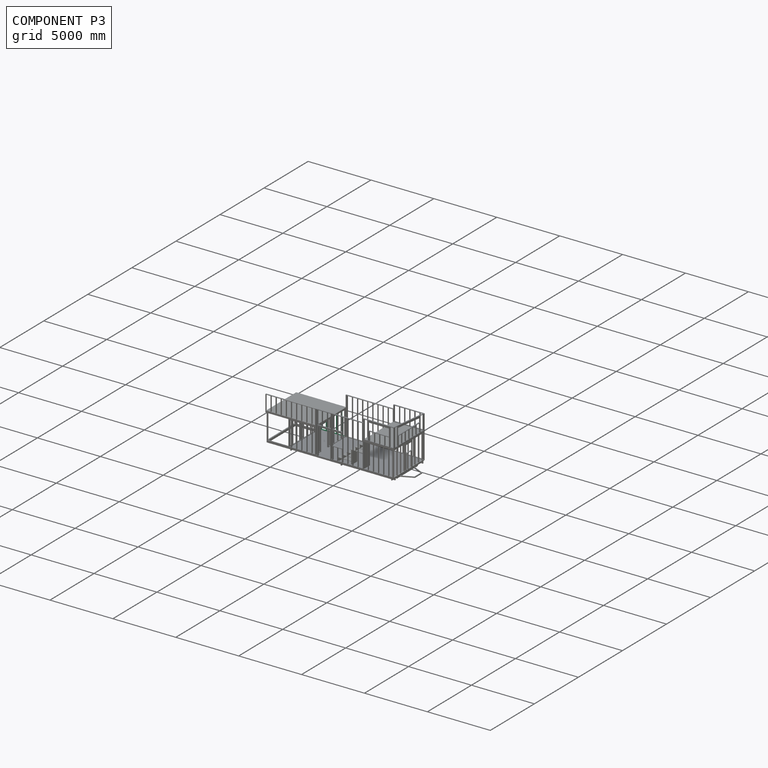
[diagram: component P3 — assembled]
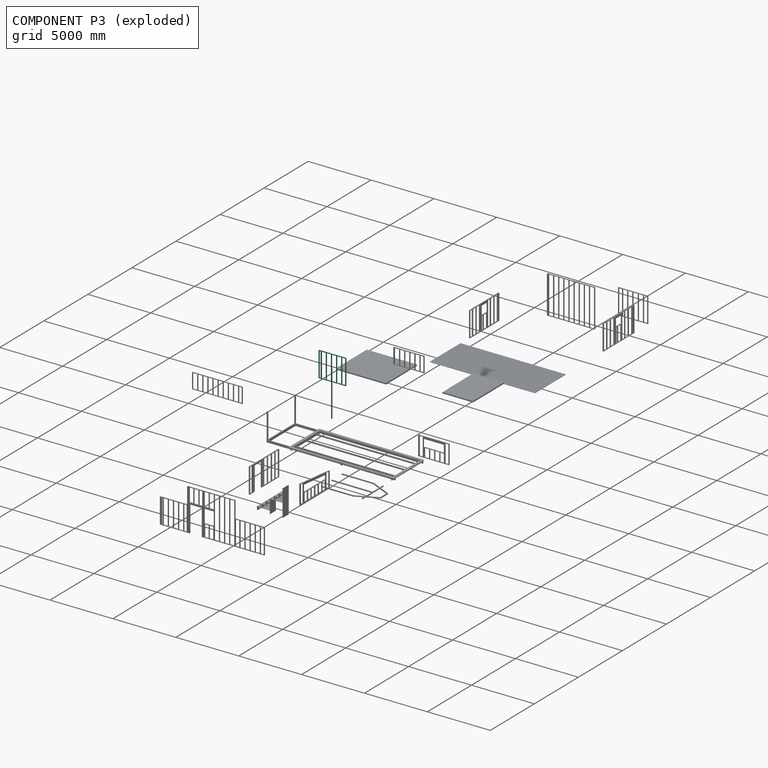
[diagram: component P3 — exploded]
COMPONENT P3 — recipe-attached (CADFS 00191175, mesh-verified: the recipe's output STEP matches this component's geometry to below the mesh-comparison resolution (tessellation chordal tolerance ~4.42 mm)).
Held by: FASTENED mate "Fastened 15" to P5.
Construction recipe (FeatureScript — the CAD program that rebuilds this solid; sketch coordinates are in the units given by the * unit suffixes, e.g. mm):

FeatureScript 2066;
import(path : "onshape/std/geometry.fs", version : "2066.0");
import(path : "onshape/std/common.fs", version : "2066.0");
const mm = millimeter;
const VERTEX = EntityType.VERTEX;
const EDGE = EntityType.EDGE;
const FACE = EntityType.FACE;
const BODY = EntityType.BODY;
function v(x, y){return vector(x, y);}
function OD(order){return orderDisambiguation(order);}
function OSD(set){return originalSetDisambiguation(set);}
function TD(topology){return topologyDisambiguation(topology);}
function TDD(query){return trueDependencyDisambiguation(query);}
function sQuery(a, b, c) {return sketchEntityQuery(a, b, c);}

annotation { "Feature Type Name" : "Feature", "Feature Type Description" : "" }
export const myFeature = defineFeature(function(context is Context, id is Id, definition is map)
    precondition{}
    {
        {
            var Q0;
            Q0=qCreatedBy(makeId("Top.planeOp"),FACE);
            var sketch = newSketch(context, id + "F0", { "sketchPlane" : qUnion([Q0])});
            skLineSegment(sketch, "E0.bottom", {"start": v(1079.5, -44.45) * mm, "end": v(-1079.5, -44.45) * mm});
            skLineSegment(sketch, "E0.top", {"start": v(1079.5, 44.45) * mm, "end": v(-1079.5, 44.45) * mm});
            skLineSegment(sketch, "E0.left", {"start": v(1079.5, -44.45) * mm, "end": v(1079.5, 44.45) * mm});
            skLineSegment(sketch, "E0.right", {"start": v(-1079.5, -44.45) * mm, "end": v(-1079.5, 44.45) * mm});
            skPoint(sketch, "E0.middle", {"position": v(0, 0) * mm});
            skSolve(sketch);
        }
        {
            var Q0;
            Q0 = qSketchRegion(id + "F0", true);
            extrude(context, id + "F1", {"entities" : qUnion([Q0]), "depth" : 38.1 * mm});
        }
        {
            var Q0;
            Q0=makeQuery(id+"F1.opExtrude","CAP_FACE",FACE,{"disambiguationData":[OSD([sQuery(id+"F0.wireOp",EDGE,"E0.bottom"),sQuery(id+"F0.wireOp",EDGE,"E0.top"),sQuery(id+"F0.wireOp",EDGE,"E0.left"),sQuery(id+"F0.wireOp",EDGE,"E0.right")])],"isStart":false});
            var sketch = newSketch(context, id + "F2", { "sketchPlane" : qUnion([Q0])});
            skLineSegment(sketch, "E1.bottom", {"start": v(1079.5, 44.45) * mm, "end": v(1041.4, 44.45) * mm});
            skLineSegment(sketch, "E1.top", {"start": v(1079.5, -44.45) * mm, "end": v(1041.4, -44.45) * mm});
            skLineSegment(sketch, "E1.left", {"start": v(1079.5, 44.45) * mm, "end": v(1079.5, -44.45) * mm});
            skLineSegment(sketch, "E1.right", {"start": v(1041.4, 44.45) * mm, "end": v(1041.4, -44.45) * mm});
            skLineSegment(sketch, "E2.bottom", {"start": v(762, 44.45) * mm, "end": v(723.9, 44.45) * mm});
            skLineSegment(sketch, "E2.top", {"start": v(762, -44.45) * mm, "end": v(723.9, -44.45) * mm});
            skLineSegment(sketch, "E2.left", {"start": v(762, 44.45) * mm, "end": v(762, -44.45) * mm});
            skLineSegment(sketch, "E2.right", {"start": v(723.9, 44.45) * mm, "end": v(723.9, -44.45) * mm});
            skLineSegment(sketch, "E3.bottom", {"start": v(355.6, 44.45) * mm, "end": v(317.5, 44.45) * mm});
            skLineSegment(sketch, "E3.top", {"start": v(355.6, -44.45) * mm, "end": v(317.5, -44.45) * mm});
            skLineSegment(sketch, "E3.left", {"start": v(355.6, 44.45) * mm, "end": v(355.6, -44.45) * mm});
            skLineSegment(sketch, "E3.right", {"start": v(317.5, 44.45) * mm, "end": v(317.5, -44.45) * mm});
            skLineSegment(sketch, "E4.bottom", {"start": v(-50.8, 44.45) * mm, "end": v(-88.9, 44.45) * mm});
            skLineSegment(sketch, "E4.top", {"start": v(-50.8, -44.45) * mm, "end": v(-88.9, -44.45) * mm});
            skLineSegment(sketch, "E4.left", {"start": v(-50.8, 44.45) * mm, "end": v(-50.8, -44.45) * mm});
            skLineSegment(sketch, "E4.right", {"start": v(-88.9, 44.45) * mm, "end": v(-88.9, -44.45) * mm});
            skLineSegment(sketch, "E5.bottom", {"start": v(-457.2, 44.45) * mm, "end": v(-495.3, 44.45) * mm});
            skLineSegment(sketch, "E5.top", {"start": v(-457.2, -44.45) * mm, "end": v(-495.3, -44.45) * mm});
            skLineSegment(sketch, "E5.left", {"start": v(-457.2, 44.45) * mm, "end": v(-457.2, -44.45) * mm});
            skLineSegment(sketch, "E5.right", {"start": v(-495.3, 44.45) * mm, "end": v(-495.3, -44.45) * mm});
            skLineSegment(sketch, "E6.bottom", {"start": v(-863.6, 44.45) * mm, "end": v(-901.7, 44.45) * mm});
            skLineSegment(sketch, "E6.top", {"start": v(-863.6, -44.45) * mm, "end": v(-901.7, -44.45) * mm});
            skLineSegment(sketch, "E6.left", {"start": v(-863.6, 44.45) * mm, "end": v(-863.6, -44.45) * mm});
            skLineSegment(sketch, "E6.right", {"start": v(-901.7, 44.45) * mm, "end": v(-901.7, -44.45) * mm});
            skLineSegment(sketch, "E7.bottom", {"start": v(-1079.5, 44.45) * mm, "end": v(-1041.4, 44.45) * mm});
            skLineSegment(sketch, "E7.top", {"start": v(-1079.5, -44.45) * mm, "end": v(-1041.4, -44.45) * mm});
            skLineSegment(sketch, "E7.left", {"start": v(-1079.5, 44.45) * mm, "end": v(-1079.5, -44.45) * mm});
            skLineSegment(sketch, "E7.right", {"start": v(-1041.4, 44.45) * mm, "end": v(-1041.4, -44.45) * mm});
            skSolve(sketch);
        }
        {
            var Q0;
            Q0 = qSketchRegion(id + "F2", true);
            extrude(context, id + "F3", {"entities" : qUnion([Q0]), "operationType" : NewBodyOperationType.ADD, "depth" : 1930.4 * mm});
        }
        {
            var Q0;
            Q0=makeQuery(id+"F3.boolean.opBoolean","MERGE",FACE,{"derivedFrom":[makeQuery(id+"F1.opExtrude","SWEPT_FACE",FACE,{"disambiguationData":[OSD([sQuery(id+"F0.wireOp",EDGE,"E0.bottom")])]}),makeQuery(id+"F3.opExtrude","SWEPT_FACE",FACE,{"disambiguationData":[OSD([sQuery(id+"F2.wireOp",EDGE,"E1.top")])]}),makeQuery(id+"F3.opExtrude","SWEPT_FACE",FACE,{"disambiguationData":[OSD([sQuery(id+"F2.wireOp",EDGE,"E2.top")])]}),makeQuery(id+"F3.opExtrude","SWEPT_FACE",FACE,{"disambiguationData":[OSD([sQuery(id+"F2.wireOp",EDGE,"E3.top")])]}),makeQuery(id+"F3.opExtrude","SWEPT_FACE",FACE,{"disambiguationData":[OSD([sQuery(id+"F2.wireOp",EDGE,"E4.top")])]}),makeQuery(id+"F3.opExtrude","SWEPT_FACE",FACE,{"disambiguationData":[OSD([sQuery(id+"F2.wireOp",EDGE,"E5.top")])]}),makeQuery(id+"F3.opExtrude","SWEPT_FACE",FACE,{"disambiguationData":[OSD([sQuery(id+"F2.wireOp",EDGE,"E6.top")])]}),makeQuery(id+"F3.opExtrude","SWEPT_FACE",FACE,{"disambiguationData":[OSD([sQuery(id+"F2.wireOp",EDGE,"E7.top")])]})]});
            var sketch = newSketch(context, id + "F4", { "sketchPlane" : qUnion([Q0])});
            skLineSegment(sketch, "E8.bottom", {"start": v(-1079.5, 1968.5) * mm, "end": v(1079.5, 1968.5) * mm});
            skLineSegment(sketch, "E8.top", {"start": v(-1079.5, 2006.6) * mm, "end": v(1079.5, 2006.6) * mm});
            skLineSegment(sketch, "E8.left", {"start": v(-1079.5, 1968.5) * mm, "end": v(-1079.5, 2006.6) * mm});
            skLineSegment(sketch, "E8.right", {"start": v(1079.5, 1968.5) * mm, "end": v(1079.5, 2006.6) * mm});
            skSolve(sketch);
        }
        {
            var Q0;
            Q0 = qSketchRegion(id + "F4", true);
            extrude(context, id + "F5", {"entities" : qUnion([Q0]), "operationType" : NewBodyOperationType.ADD, "oppositeDirection" : true, "depth" : 88.9 * mm});
        }
    });
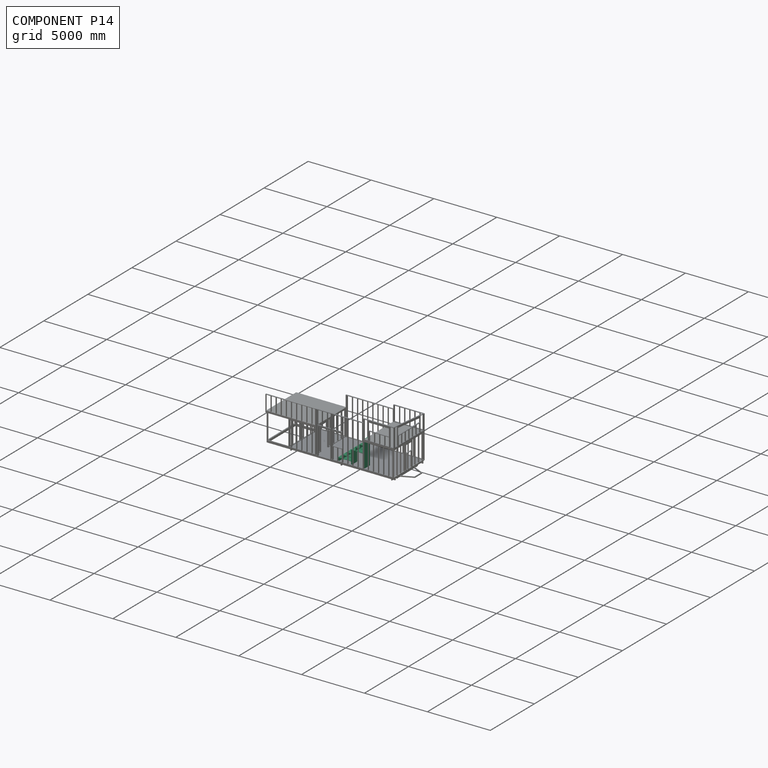
[diagram: component P14 — assembled]
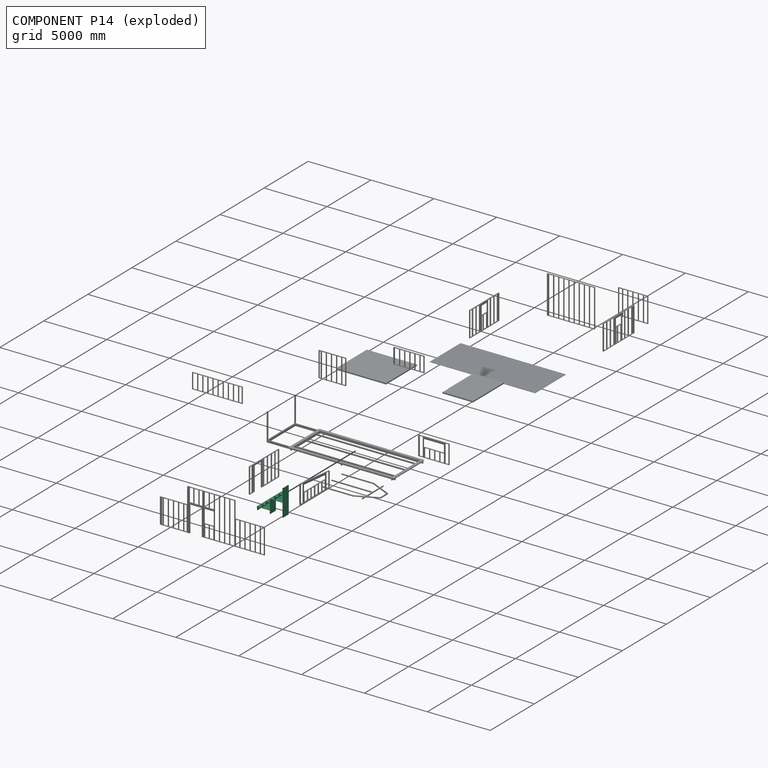
[diagram: component P14 — exploded]
COMPONENT P14 — recipe-attached (CADFS 00191172, mesh-verified: the recipe's output STEP matches this component's geometry to below the mesh-comparison resolution (tessellation chordal tolerance ~4.55 mm)).
Held by: FASTENED mate "Fastened 12" to P4.
Construction recipe (FeatureScript — the CAD program that rebuilds this solid; sketch coordinates are in the units given by the * unit suffixes, e.g. mm):

FeatureScript 2066;
import(path : "onshape/std/geometry.fs", version : "2066.0");
import(path : "onshape/std/common.fs", version : "2066.0");
const mm = millimeter;
const VERTEX = EntityType.VERTEX;
const EDGE = EntityType.EDGE;
const FACE = EntityType.FACE;
const BODY = EntityType.BODY;
function v(x, y){return vector(x, y);}
function OD(order){return orderDisambiguation(order);}
function OSD(set){return originalSetDisambiguation(set);}
function TD(topology){return topologyDisambiguation(topology);}
function TDD(query){return trueDependencyDisambiguation(query);}
function sQuery(a, b, c) {return sketchEntityQuery(a, b, c);}

annotation { "Feature Type Name" : "Feature", "Feature Type Description" : "" }
export const myFeature = defineFeature(function(context is Context, id is Id, definition is map)
    precondition{}
    {
        {
            var Q0;
            Q0=qCreatedBy(makeId("Front.planeOp"),FACE);
            var sketch = newSketch(context, id + "F0", { "sketchPlane" : qUnion([Q0])});
            skLineSegment(sketch, "E0", {"start": v(0, 1659.28) * mm, "end": v(0, -448.92) * mm});
            skLineSegment(sketch, "E1", {"start": v(0, -448.92) * mm, "end": v(2032, -448.92) * mm});
            skLineSegment(sketch, "E2", {"start": v(2032, -448.92) * mm, "end": v(2032, -173.76) * mm});
            skLineSegment(sketch, "E3", {"start": v(2032, -173.76) * mm, "end": v(1693.33, -173.76) * mm});
            skLineSegment(sketch, "E4", {"start": v(1693.33, -173.76) * mm, "end": v(1693.33, 101.41) * mm});
            skLineSegment(sketch, "E5", {"start": v(1693.33, 101.41) * mm, "end": v(1354.67, 101.41) * mm});
            skLineSegment(sketch, "E6", {"start": v(1354.67, 101.41) * mm, "end": v(1354.67, 376.58) * mm});
            skLineSegment(sketch, "E7", {"start": v(1354.67, 376.58) * mm, "end": v(1016, 376.58) * mm});
            skLineSegment(sketch, "E8", {"start": v(1016, 376.58) * mm, "end": v(1016, 651.74) * mm});
            skLineSegment(sketch, "E9", {"start": v(1016, 651.74) * mm, "end": v(677.33, 651.74) * mm});
            skLineSegment(sketch, "E10", {"start": v(677.33, 651.74) * mm, "end": v(677.33, 926.91) * mm});
            skLineSegment(sketch, "E11", {"start": v(677.33, 926.91) * mm, "end": v(338.67, 926.91) * mm});
            skLineSegment(sketch, "E12", {"start": v(338.67, 926.91) * mm, "end": v(338.67, 1202.08) * mm});
            skLineSegment(sketch, "E13", {"start": v(338.67, 1202.08) * mm, "end": v(0, 1202.08) * mm});
            skLineSegment(sketch, "E14", {"start": v(0, 1659.28) * mm, "end": v(-25.4, 1659.28) * mm});
            skLineSegment(sketch, "E15", {"start": v(-25.4, 1659.28) * mm, "end": v(-25.4, -448.92) * mm});
            skLineSegment(sketch, "E16", {"start": v(-25.4, -448.92) * mm, "end": v(0, -448.92) * mm});
            skSolve(sketch);
        }
        {
            var Q0;
            Q0 = qSketchRegion(id + "F0", true);
            extrude(context, id + "F1", {"entities" : qUnion([Q0]), "depth" : 660.4 * mm});
        }
        {
            var Q0;
            Q0=makeQuery(id+"F1.opExtrude","CAP_FACE",FACE,{"disambiguationData":[OSD([sQuery(id+"F0.wireOp",EDGE,"E0"),sQuery(id+"F0.wireOp",EDGE,"E1"),sQuery(id+"F0.wireOp",EDGE,"E2"),sQuery(id+"F0.wireOp",EDGE,"E3"),sQuery(id+"F0.wireOp",EDGE,"E4"),sQuery(id+"F0.wireOp",EDGE,"E5"),sQuery(id+"F0.wireOp",EDGE,"E6"),sQuery(id+"F0.wireOp",EDGE,"E7"),sQuery(id+"F0.wireOp",EDGE,"E8"),sQuery(id+"F0.wireOp",EDGE,"E9"),sQuery(id+"F0.wireOp",EDGE,"E10"),sQuery(id+"F0.wireOp",EDGE,"E11"),sQuery(id+"F0.wireOp",EDGE,"E12"),sQuery(id+"F0.wireOp",EDGE,"E13"),sQuery(id+"F0.wireOp",EDGE,"E14"),sQuery(id+"F0.wireOp",EDGE,"E15"),sQuery(id+"F0.wireOp",EDGE,"E16")])],"isStart":false});
            var sketch = newSketch(context, id + "F2", { "sketchPlane" : qUnion([Q0])});
            skLineSegment(sketch, "E17.bottom", {"start": v(0, 1176.68) * mm, "end": v(313.27, 1176.68) * mm});
            skLineSegment(sketch, "E17.top", {"start": v(0, 926.91) * mm, "end": v(313.27, 926.91) * mm});
            skLineSegment(sketch, "E17.left", {"start": v(0, 1176.68) * mm, "end": v(0, 926.91) * mm});
            skLineSegment(sketch, "E17.right", {"start": v(313.27, 1176.68) * mm, "end": v(313.27, 926.91) * mm});
            skLineSegment(sketch, "E18.bottom", {"start": v(0, 901.51) * mm, "end": v(651.93, 901.51) * mm});
            skLineSegment(sketch, "E18.top", {"start": v(0, 651.74) * mm, "end": v(651.93, 651.74) * mm});
            skLineSegment(sketch, "E18.left", {"start": v(0, 901.51) * mm, "end": v(0, 651.74) * mm});
            skLineSegment(sketch, "E18.right", {"start": v(651.93, 901.51) * mm, "end": v(651.93, 651.74) * mm});
            skLineSegment(sketch, "E19.bottom", {"start": v(0, 626.34) * mm, "end": v(990.6, 626.34) * mm});
            skLineSegment(sketch, "E19.top", {"start": v(0, -448.92) * mm, "end": v(990.6, -448.92) * mm});
            skLineSegment(sketch, "E19.left", {"start": v(0, 626.34) * mm, "end": v(0, -448.92) * mm});
            skLineSegment(sketch, "E19.right", {"start": v(990.6, 626.34) * mm, "end": v(990.6, -448.92) * mm});
            skLineSegment(sketch, "E20.bottom", {"start": v(1016, 351.18) * mm, "end": v(1329.27, 351.18) * mm});
            skLineSegment(sketch, "E20.top", {"start": v(1016, 101.41) * mm, "end": v(1329.27, 101.41) * mm});
            skLineSegment(sketch, "E20.left", {"start": v(1016, 351.18) * mm, "end": v(1016, 101.41) * mm});
            skLineSegment(sketch, "E20.right", {"start": v(1329.27, 351.18) * mm, "end": v(1329.27, 101.41) * mm});
            skLineSegment(sketch, "E21.bottom", {"start": v(1016, 76.01) * mm, "end": v(1667.93, 76.01) * mm});
            skLineSegment(sketch, "E21.top", {"start": v(1016, -173.76) * mm, "end": v(1667.93, -173.76) * mm});
            skLineSegment(sketch, "E21.left", {"start": v(1016, 76.01) * mm, "end": v(1016, -173.76) * mm});
            skLineSegment(sketch, "E21.right", {"start": v(1667.93, 76.01) * mm, "end": v(1667.93, -173.76) * mm});
            skLineSegment(sketch, "E22.bottom", {"start": v(1016, -199.16) * mm, "end": v(2006.6, -199.16) * mm});
            skLineSegment(sketch, "E22.top", {"start": v(1016, -448.92) * mm, "end": v(2006.6, -448.92) * mm});
            skLineSegment(sketch, "E22.left", {"start": v(1016, -199.16) * mm, "end": v(1016, -448.92) * mm});
            skLineSegment(sketch, "E22.right", {"start": v(2006.6, -199.16) * mm, "end": v(2006.6, -448.92) * mm});
            skSolve(sketch);
        }
        {
            var Q0;
            Q0 = qSketchRegion(id + "F2", true);
            extrude(context, id + "F3", {"entities" : qUnion([Q0]), "operationType" : NewBodyOperationType.REMOVE, "oppositeDirection" : true, "depth" : 660.4 * mm});
        }
        {
            var Q0;
            Q0=makeQuery(id+"F1.opExtrude","SWEPT_FACE",FACE,{"disambiguationData":[OSD([sQuery(id+"F0.wireOp",EDGE,"E0")])]});
            var sketch = newSketch(context, id + "F4", { "sketchPlane" : qUnion([Q0])});
            skLineSegment(sketch, "E23.bottom", {"start": v(-660.4, 1659.28) * mm, "end": v(0, 1659.28) * mm});
            skLineSegment(sketch, "E23.top", {"start": v(-660.4, 1621.18) * mm, "end": v(0, 1621.18) * mm});
            skLineSegment(sketch, "E23.left", {"start": v(-660.4, 1659.28) * mm, "end": v(-660.4, 1621.18) * mm});
            skLineSegment(sketch, "E23.right", {"start": v(0, 1659.28) * mm, "end": v(0, 1621.18) * mm});
            skSolve(sketch);
        }
        {
            var Q0;
            Q0 = qSketchRegion(id + "F4", true);
            extrude(context, id + "F5", {"entities" : qUnion([Q0]), "operationType" : NewBodyOperationType.ADD, "depth" : 25.4 * mm});
        }
        {
            var Q0;
            Q0=makeQuery(id+"F1.opExtrude","SWEPT_FACE",FACE,{"disambiguationData":[OSD([sQuery(id+"F0.wireOp",EDGE,"E12")])]});
            var sketch = newSketch(context, id + "F6", { "sketchPlane" : qUnion([Q0])});
            skLineSegment(sketch, "E24.bottom", {"start": v(-660.4, 1202.08) * mm, "end": v(0, 1202.08) * mm});
            skLineSegment(sketch, "E24.top", {"start": v(-660.4, 1163.98) * mm, "end": v(0, 1163.98) * mm});
            skLineSegment(sketch, "E24.left", {"start": v(-660.4, 1202.08) * mm, "end": v(-660.4, 1163.98) * mm});
            skLineSegment(sketch, "E24.right", {"start": v(0, 1202.08) * mm, "end": v(0, 1163.98) * mm});
            skSolve(sketch);
        }
        {
            var Q0;
            Q0 = qSketchRegion(id + "F6", true);
            extrude(context, id + "F7", {"entities" : qUnion([Q0]), "operationType" : NewBodyOperationType.ADD, "depth" : 25.4 * mm});
        }
        {
            var Q0;
            Q0=makeQuery(id+"F1.opExtrude","SWEPT_FACE",FACE,{"disambiguationData":[OSD([sQuery(id+"F0.wireOp",EDGE,"E10")])]});
            var sketch = newSketch(context, id + "F8", { "sketchPlane" : qUnion([Q0])});
            skLineSegment(sketch, "E25.bottom", {"start": v(-660.4, 926.91) * mm, "end": v(0, 926.91) * mm});
            skLineSegment(sketch, "E25.top", {"start": v(-660.4, 888.81) * mm, "end": v(0, 888.81) * mm});
            skLineSegment(sketch, "E25.left", {"start": v(-660.4, 926.91) * mm, "end": v(-660.4, 888.81) * mm});
            skLineSegment(sketch, "E25.right", {"start": v(0, 926.91) * mm, "end": v(0, 888.81) * mm});
            skSolve(sketch);
        }
        {
            var Q0;
            Q0 = qSketchRegion(id + "F8", true);
            extrude(context, id + "F9", {"entities" : qUnion([Q0]), "operationType" : NewBodyOperationType.ADD, "depth" : 25.4 * mm});
        }
        {
            var Q0;
            Q0=makeQuery(id+"F1.opExtrude","SWEPT_FACE",FACE,{"disambiguationData":[OSD([sQuery(id+"F0.wireOp",EDGE,"E8")])]});
            var sketch = newSketch(context, id + "F10", { "sketchPlane" : qUnion([Q0])});
            skLineSegment(sketch, "E26.bottom", {"start": v(-660.4, 651.74) * mm, "end": v(0, 651.74) * mm});
            skLineSegment(sketch, "E26.top", {"start": v(-660.4, 613.64) * mm, "end": v(0, 613.64) * mm});
            skLineSegment(sketch, "E26.left", {"start": v(-660.4, 651.74) * mm, "end": v(-660.4, 613.64) * mm});
            skLineSegment(sketch, "E26.right", {"start": v(0, 651.74) * mm, "end": v(0, 613.64) * mm});
            skSolve(sketch);
        }
        {
            var Q0;
            Q0 = qSketchRegion(id + "F10", true);
            extrude(context, id + "F11", {"entities" : qUnion([Q0]), "operationType" : NewBodyOperationType.ADD, "depth" : 25.4 * mm});
        }
        {
            var Q0;
            Q0=makeQuery(id+"F1.opExtrude","SWEPT_FACE",FACE,{"disambiguationData":[OSD([sQuery(id+"F0.wireOp",EDGE,"E6")])]});
            var sketch = newSketch(context, id + "F12", { "sketchPlane" : qUnion([Q0])});
            skLineSegment(sketch, "E27.bottom", {"start": v(0, 376.58) * mm, "end": v(-660.4, 376.58) * mm});
            skLineSegment(sketch, "E27.top", {"start": v(0, 338.48) * mm, "end": v(-660.4, 338.48) * mm});
            skLineSegment(sketch, "E27.left", {"start": v(0, 376.58) * mm, "end": v(0, 338.48) * mm});
            skLineSegment(sketch, "E27.right", {"start": v(-660.4, 376.58) * mm, "end": v(-660.4, 338.48) * mm});
            skSolve(sketch);
        }
        {
            var Q0;
            Q0 = qSketchRegion(id + "F12", true);
            extrude(context, id + "F13", {"entities" : qUnion([Q0]), "operationType" : NewBodyOperationType.ADD, "depth" : 25.4 * mm});
        }
        {
            var Q0;
            Q0=makeQuery(id+"F1.opExtrude","SWEPT_FACE",FACE,{"disambiguationData":[OSD([sQuery(id+"F0.wireOp",EDGE,"E4")])]});
            var sketch = newSketch(context, id + "F14", { "sketchPlane" : qUnion([Q0])});
            skLineSegment(sketch, "E28.bottom", {"start": v(-660.4, 101.41) * mm, "end": v(0, 101.41) * mm});
            skLineSegment(sketch, "E28.top", {"start": v(-660.4, 63.31) * mm, "end": v(0, 63.31) * mm});
            skLineSegment(sketch, "E28.left", {"start": v(-660.4, 101.41) * mm, "end": v(-660.4, 63.31) * mm});
            skLineSegment(sketch, "E28.right", {"start": v(0, 101.41) * mm, "end": v(0, 63.31) * mm});
            skSolve(sketch);
        }
        {
            var Q0;
            Q0 = qSketchRegion(id + "F14", true);
            extrude(context, id + "F15", {"entities" : qUnion([Q0]), "operationType" : NewBodyOperationType.ADD, "depth" : 25.4 * mm});
        }
        {
            var Q0;
            Q0=makeQuery(id+"F1.opExtrude","SWEPT_FACE",FACE,{"disambiguationData":[OSD([sQuery(id+"F0.wireOp",EDGE,"E2")])]});
            var sketch = newSketch(context, id + "F16", { "sketchPlane" : qUnion([Q0])});
            skLineSegment(sketch, "E29.bottom", {"start": v(-660.4, -173.76) * mm, "end": v(0, -173.76) * mm});
            skLineSegment(sketch, "E29.top", {"start": v(-660.4, -211.86) * mm, "end": v(0, -211.86) * mm});
            skLineSegment(sketch, "E29.left", {"start": v(-660.4, -173.76) * mm, "end": v(-660.4, -211.86) * mm});
            skLineSegment(sketch, "E29.right", {"start": v(0, -173.76) * mm, "end": v(0, -211.86) * mm});
            skSolve(sketch);
        }
        {
            var Q0;
            Q0 = qSketchRegion(id + "F16", true);
            extrude(context, id + "F17", {"entities" : qUnion([Q0]), "operationType" : NewBodyOperationType.ADD, "depth" : 25.4 * mm});
        }
    });
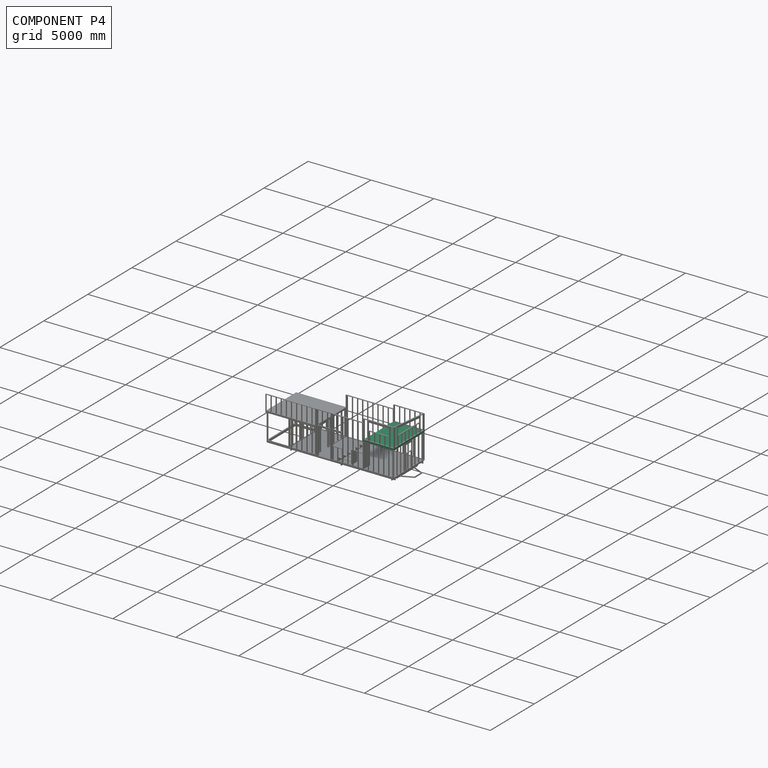
[diagram: component P4 — assembled]
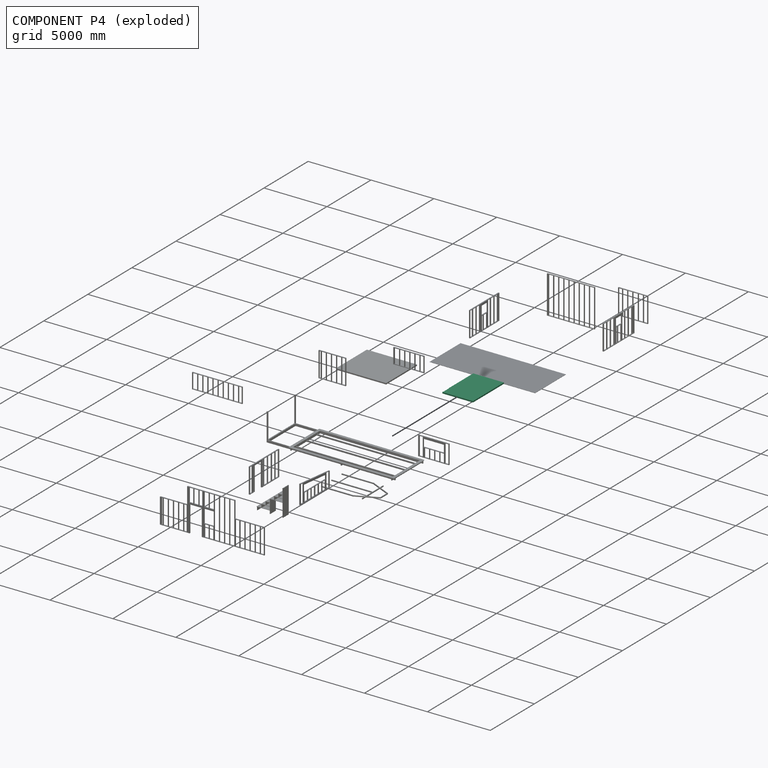
[diagram: component P4 — exploded]
COMPONENT P4 — recipe-attached (CADFS 00191166, mesh-verified: the recipe's output STEP matches this component's geometry to below the mesh-comparison resolution (tessellation chordal tolerance ~6.41 mm)).
Held by: FASTENED mate "Fastened 12" to P14; FASTENED mate "Fastened 7" to P11; FASTENED mate "Fastened 11" to P13; FASTENED mate "Fastened 10" to P15; FASTENED mate "Fastened 6" to P8.
Construction recipe (FeatureScript — the CAD program that rebuilds this solid; sketch coordinates are in the units given by the * unit suffixes, e.g. mm):

FeatureScript 2066;
import(path : "onshape/std/geometry.fs", version : "2066.0");
import(path : "onshape/std/common.fs", version : "2066.0");
const mm = millimeter;
const VERTEX = EntityType.VERTEX;
const EDGE = EntityType.EDGE;
const FACE = EntityType.FACE;
const BODY = EntityType.BODY;
function v(x, y){return vector(x, y);}
function OD(order){return orderDisambiguation(order);}
function OSD(set){return originalSetDisambiguation(set);}
function TD(topology){return topologyDisambiguation(topology);}
function TDD(query){return trueDependencyDisambiguation(query);}
function sQuery(a, b, c) {return sketchEntityQuery(a, b, c);}

annotation { "Feature Type Name" : "Feature", "Feature Type Description" : "" }
export const myFeature = defineFeature(function(context is Context, id is Id, definition is map)
    precondition{}
    {
        {
            var Q0;
            Q0=qCreatedBy(makeId("Top.planeOp"),FACE);
            var sketch = newSketch(context, id + "F0", { "sketchPlane" : qUnion([Q0])});
            skLineSegment(sketch, "E0.bottom", {"start": v(1752.17, -255.09) * mm, "end": v(-1753.03, -255.09) * mm});
            skLineSegment(sketch, "E0.top", {"start": v(1752.17, -166.19) * mm, "end": v(-1753.03, -166.19) * mm});
            skLineSegment(sketch, "E0.left", {"start": v(1752.17, -255.09) * mm, "end": v(1752.17, -166.19) * mm});
            skLineSegment(sketch, "E0.right", {"start": v(-1753.03, -255.09) * mm, "end": v(-1753.03, -166.19) * mm});
            skPoint(sketch, "E0.middle", {"position": v(-0.43, -210.64) * mm});
            skSolve(sketch);
        }
        {
            var Q0;
            Q0 = qSketchRegion(id + "F0", true);
            extrude(context, id + "F1", {"entities" : qUnion([Q0]), "depth" : 38.1 * mm});
        }
        {
            var Q0;
            Q0=makeQuery(id+"F1.opExtrude","CAP_FACE",FACE,{"disambiguationData":[OSD([sQuery(id+"F0.wireOp",EDGE,"E0.bottom"),sQuery(id+"F0.wireOp",EDGE,"E0.top"),sQuery(id+"F0.wireOp",EDGE,"E0.left"),sQuery(id+"F0.wireOp",EDGE,"E0.right")])],"isStart":false});
            var sketch = newSketch(context, id + "F2", { "sketchPlane" : qUnion([Q0])});
            skLineSegment(sketch, "E1.bottom", {"start": v(1752.17, -166.02) * mm, "end": v(1714.07, -166.02) * mm});
            skLineSegment(sketch, "E1.top", {"start": v(1752.17, -255.09) * mm, "end": v(1714.07, -255.09) * mm});
            skLineSegment(sketch, "E1.left", {"start": v(1752.17, -166.02) * mm, "end": v(1752.17, -255.09) * mm});
            skLineSegment(sketch, "E1.right", {"start": v(1714.07, -166.02) * mm, "end": v(1714.07, -255.09) * mm});
            skLineSegment(sketch, "E2.bottom", {"start": v(1345.77, -166.19) * mm, "end": v(1307.67, -166.19) * mm});
            skLineSegment(sketch, "E2.top", {"start": v(1345.77, -255.09) * mm, "end": v(1307.67, -255.09) * mm});
            skLineSegment(sketch, "E2.left", {"start": v(1345.77, -166.19) * mm, "end": v(1345.77, -255.09) * mm});
            skLineSegment(sketch, "E2.right", {"start": v(1307.67, -166.19) * mm, "end": v(1307.67, -255.09) * mm});
            skLineSegment(sketch, "E3.bottom", {"start": v(939.37, -166.19) * mm, "end": v(901.27, -166.19) * mm});
            skLineSegment(sketch, "E3.top", {"start": v(939.37, -255.09) * mm, "end": v(901.27, -255.09) * mm});
            skLineSegment(sketch, "E3.left", {"start": v(939.37, -166.19) * mm, "end": v(939.37, -255.09) * mm});
            skLineSegment(sketch, "E3.right", {"start": v(901.27, -166.19) * mm, "end": v(901.27, -255.09) * mm});
            skLineSegment(sketch, "E4.bottom", {"start": v(532.97, -166.19) * mm, "end": v(494.87, -166.19) * mm});
            skLineSegment(sketch, "E4.top", {"start": v(532.97, -255.09) * mm, "end": v(494.87, -255.09) * mm});
            skLineSegment(sketch, "E4.left", {"start": v(532.97, -166.19) * mm, "end": v(532.97, -255.09) * mm});
            skLineSegment(sketch, "E4.right", {"start": v(494.87, -166.19) * mm, "end": v(494.87, -255.09) * mm});
            skLineSegment(sketch, "E5.bottom", {"start": v(88.47, -166.19) * mm, "end": v(126.57, -166.19) * mm});
            skLineSegment(sketch, "E5.top", {"start": v(88.47, -255.09) * mm, "end": v(126.57, -255.09) * mm});
            skLineSegment(sketch, "E5.left", {"start": v(88.47, -166.19) * mm, "end": v(88.47, -255.09) * mm});
            skLineSegment(sketch, "E5.right", {"start": v(126.57, -166.19) * mm, "end": v(126.57, -255.09) * mm});
            skLineSegment(sketch, "E6.bottom", {"start": v(-317.93, -166.19) * mm, "end": v(-279.83, -166.19) * mm});
            skLineSegment(sketch, "E6.top", {"start": v(-317.93, -255.09) * mm, "end": v(-279.83, -255.09) * mm});
            skLineSegment(sketch, "E6.left", {"start": v(-317.93, -166.19) * mm, "end": v(-317.93, -255.09) * mm});
            skLineSegment(sketch, "E6.right", {"start": v(-279.83, -166.19) * mm, "end": v(-279.83, -255.09) * mm});
            skLineSegment(sketch, "E7.bottom", {"start": v(-724.33, -166.19) * mm, "end": v(-686.23, -166.19) * mm});
            skLineSegment(sketch, "E7.top", {"start": v(-724.33, -255.09) * mm, "end": v(-686.23, -255.09) * mm});
            skLineSegment(sketch, "E7.left", {"start": v(-724.33, -166.19) * mm, "end": v(-724.33, -255.09) * mm});
            skLineSegment(sketch, "E7.right", {"start": v(-686.23, -166.19) * mm, "end": v(-686.23, -255.09) * mm});
            skLineSegment(sketch, "E8.bottom", {"start": v(-1130.73, -166.19) * mm, "end": v(-1092.63, -166.19) * mm});
            skLineSegment(sketch, "E8.top", {"start": v(-1130.73, -255.09) * mm, "end": v(-1092.63, -255.09) * mm});
            skLineSegment(sketch, "E8.left", {"start": v(-1130.73, -166.19) * mm, "end": v(-1130.73, -255.09) * mm});
            skLineSegment(sketch, "E8.right", {"start": v(-1092.63, -166.19) * mm, "end": v(-1092.63, -255.09) * mm});
            skLineSegment(sketch, "E9.bottom", {"start": v(-1537.13, -166.19) * mm, "end": v(-1499.03, -166.19) * mm});
            skLineSegment(sketch, "E9.top", {"start": v(-1537.13, -255.09) * mm, "end": v(-1499.03, -255.09) * mm});
            skLineSegment(sketch, "E9.left", {"start": v(-1537.13, -166.19) * mm, "end": v(-1537.13, -255.09) * mm});
            skLineSegment(sketch, "E9.right", {"start": v(-1499.03, -166.19) * mm, "end": v(-1499.03, -255.09) * mm});
            skLineSegment(sketch, "E10.bottom", {"start": v(-1753.03, -166.19) * mm, "end": v(-1714.93, -166.19) * mm});
            skLineSegment(sketch, "E10.top", {"start": v(-1753.03, -255.09) * mm, "end": v(-1714.93, -255.09) * mm});
            skLineSegment(sketch, "E10.left", {"start": v(-1753.03, -166.19) * mm, "end": v(-1753.03, -255.09) * mm});
            skLineSegment(sketch, "E10.right", {"start": v(-1714.93, -166.19) * mm, "end": v(-1714.93, -255.09) * mm});
            skSolve(sketch);
        }
        {
            var Q0;
            Q0 = qSketchRegion(id + "F2", true);
            extrude(context, id + "F3", {"entities" : qUnion([Q0]), "operationType" : NewBodyOperationType.ADD, "depth" : 2286 * mm});
        }
        {
            var Q0;
            Q0=makeQuery(id+"F3.boolean.opBoolean","MERGE",FACE,{"derivedFrom":[makeQuery(id+"F1.opExtrude","SWEPT_FACE",FACE,{"disambiguationData":[OSD([sQuery(id+"F0.wireOp",EDGE,"E0.top")])]}),makeQuery(id+"F3.opExtrude","SWEPT_FACE",FACE,{"disambiguationData":[OSD([sQuery(id+"F2.wireOp",EDGE,"E2.bottom")])]}),makeQuery(id+"F3.opExtrude","SWEPT_FACE",FACE,{"disambiguationData":[OSD([sQuery(id+"F2.wireOp",EDGE,"E3.bottom")])]}),makeQuery(id+"F3.opExtrude","SWEPT_FACE",FACE,{"disambiguationData":[OSD([sQuery(id+"F2.wireOp",EDGE,"E4.bottom")])]}),makeQuery(id+"F3.opExtrude","SWEPT_FACE",FACE,{"disambiguationData":[OSD([sQuery(id+"F2.wireOp",EDGE,"E5.bottom")])]}),makeQuery(id+"F3.opExtrude","SWEPT_FACE",FACE,{"disambiguationData":[OSD([sQuery(id+"F2.wireOp",EDGE,"E6.bottom")])]}),makeQuery(id+"F3.opExtrude","SWEPT_FACE",FACE,{"disambiguationData":[OSD([sQuery(id+"F2.wireOp",EDGE,"E7.bottom")])]}),makeQuery(id+"F3.opExtrude","SWEPT_FACE",FACE,{"disambiguationData":[OSD([sQuery(id+"F2.wireOp",EDGE,"E8.bottom")])]}),makeQuery(id+"F3.opExtrude","SWEPT_FACE",FACE,{"disambiguationData":[OSD([sQuery(id+"F2.wireOp",EDGE,"E9.bottom")])]}),makeQuery(id+"F3.opExtrude","SWEPT_FACE",FACE,{"disambiguationData":[OSD([sQuery(id+"F2.wireOp",EDGE,"E10.bottom")])]})]});
            var sketch = newSketch(context, id + "F4", { "sketchPlane" : qUnion([Q0])});
            skLineSegment(sketch, "E11.bottom", {"start": v(1753.03, 2324.1) * mm, "end": v(-1752.17, 2324.1) * mm});
            skLineSegment(sketch, "E11.top", {"start": v(1753.03, 2438.4) * mm, "end": v(-1752.17, 2438.4) * mm});
            skLineSegment(sketch, "E11.left", {"start": v(1753.03, 2324.1) * mm, "end": v(1753.03, 2438.4) * mm});
            skLineSegment(sketch, "E11.right", {"start": v(-1752.17, 2324.1) * mm, "end": v(-1752.17, 2438.4) * mm});
            skSolve(sketch);
        }
        {
            var Q0;
            Q0 = qSketchRegion(id + "F4", true);
            extrude(context, id + "F5", {"entities" : qUnion([Q0]), "operationType" : NewBodyOperationType.ADD, "oppositeDirection" : true, "depth" : 88.9 * mm});
        }
        {
            var Q0;
            Q0=makeQuery(id+"F5.boolean.opBoolean","MERGE",FACE,{"derivedFrom":[makeQuery(id+"F3.boolean.opBoolean","MERGE",FACE,{"derivedFrom":[makeQuery(id+"F1.opExtrude","SWEPT_FACE",FACE,{"disambiguationData":[OSD([sQuery(id+"F0.wireOp",EDGE,"E0.bottom")])]}),makeQuery(id+"F3.opExtrude","SWEPT_FACE",FACE,{"disambiguationData":[OSD([sQuery(id+"F2.wireOp",EDGE,"E1.top")])]}),makeQuery(id+"F3.opExtrude","SWEPT_FACE",FACE,{"disambiguationData":[OSD([sQuery(id+"F2.wireOp",EDGE,"E2.top")])]}),makeQuery(id+"F3.opExtrude","SWEPT_FACE",FACE,{"disambiguationData":[OSD([sQuery(id+"F2.wireOp",EDGE,"E3.top")])]}),makeQuery(id+"F3.opExtrude","SWEPT_FACE",FACE,{"disambiguationData":[OSD([sQuery(id+"F2.wireOp",EDGE,"E4.top")])]}),makeQuery(id+"F3.opExtrude","SWEPT_FACE",FACE,{"disambiguationData":[OSD([sQuery(id+"F2.wireOp",EDGE,"E5.top")])]}),makeQuery(id+"F3.opExtrude","SWEPT_FACE",FACE,{"disambiguationData":[OSD([sQuery(id+"F2.wireOp",EDGE,"E6.top")])]}),makeQuery(id+"F3.opExtrude","SWEPT_FACE",FACE,{"disambiguationData":[OSD([sQuery(id+"F2.wireOp",EDGE,"E7.top")])]}),makeQuery(id+"F3.opExtrude","SWEPT_FACE",FACE,{"disambiguationData":[OSD([sQuery(id+"F2.wireOp",EDGE,"E8.top")])]}),makeQuery(id+"F3.opExtrude","SWEPT_FACE",FACE,{"disambiguationData":[OSD([sQuery(id+"F2.wireOp",EDGE,"E9.top")])]}),makeQuery(id+"F3.opExtrude","SWEPT_FACE",FACE,{"disambiguationData":[OSD([sQuery(id+"F2.wireOp",EDGE,"E10.top")])]})]}),makeQuery(id+"F5.opExtrude","CAP_FACE",FACE,{"disambiguationData":[OSD([sQuery(id+"F4.wireOp",EDGE,"E11.bottom"),sQuery(id+"F4.wireOp",EDGE,"E11.top"),sQuery(id+"F4.wireOp",EDGE,"E11.left"),sQuery(id+"F4.wireOp",EDGE,"E11.right")])],"isStart":false})]});
            var sketch = newSketch(context, id + "F6", { "sketchPlane" : qUnion([Q0])});
            skLineSegment(sketch, "E12.bottom", {"start": v(-1753.03, 2438.4) * mm, "end": v(1752.17, 2438.4) * mm});
            skLineSegment(sketch, "E12.top", {"start": v(-1753.03, 0) * mm, "end": v(1752.17, 0) * mm});
            skLineSegment(sketch, "E12.left", {"start": v(-1753.03, 2438.4) * mm, "end": v(-1753.03, 0) * mm});
            skLineSegment(sketch, "E12.right", {"start": v(1752.17, 2438.4) * mm, "end": v(1752.17, 0) * mm});
            skSolve(sketch);
        }
        {
            var Q0;
            Q0 = qSketchRegion(id + "F6", true);
            extrude(context, id + "F7", {"entities" : qUnion([Q0]), "operationType" : NewBodyOperationType.ADD, "depth" : 12.7 * mm});
        }
        {
            var Q0;
            Q0=makeQuery(id+"F7.opExtrude","CAP_FACE",FACE,{"disambiguationData":[OSD([sQuery(id+"F6.wireOp",EDGE,"E12.bottom"),sQuery(id+"F6.wireOp",EDGE,"E12.top"),sQuery(id+"F6.wireOp",EDGE,"E12.left"),sQuery(id+"F6.wireOp",EDGE,"E12.right")])],"isStart":false});
            var sketch = newSketch(context, id + "F8", { "sketchPlane" : qUnion([Q0])});
            skLineSegment(sketch, "E13.bottom", {"start": v(-1664.13, 2438.4) * mm, "end": v(-1003.73, 2438.4) * mm});
            skLineSegment(sketch, "E13.top", {"start": v(-1664.13, 2413) * mm, "end": v(-1003.73, 2413) * mm});
            skLineSegment(sketch, "E13.left", {"start": v(-1664.13, 2438.4) * mm, "end": v(-1664.13, 2413) * mm});
            skLineSegment(sketch, "E13.right", {"start": v(-1003.73, 2438.4) * mm, "end": v(-1003.73, 2413) * mm});
            skSolve(sketch);
        }
        {
            var Q0;
            Q0 = qSketchRegion(id + "F8", true);
            extrude(context, id + "F9", {"entities" : qUnion([Q0]), "operationType" : NewBodyOperationType.REMOVE, "oppositeDirection" : true, "depth" : 132.08 * mm});
        }
    });
